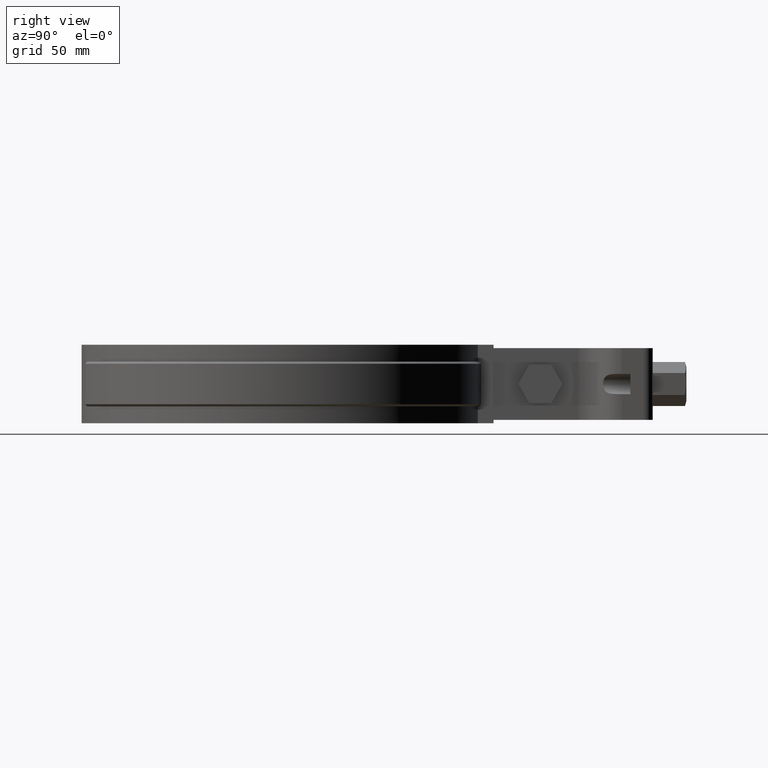
[diagram: clean part render]
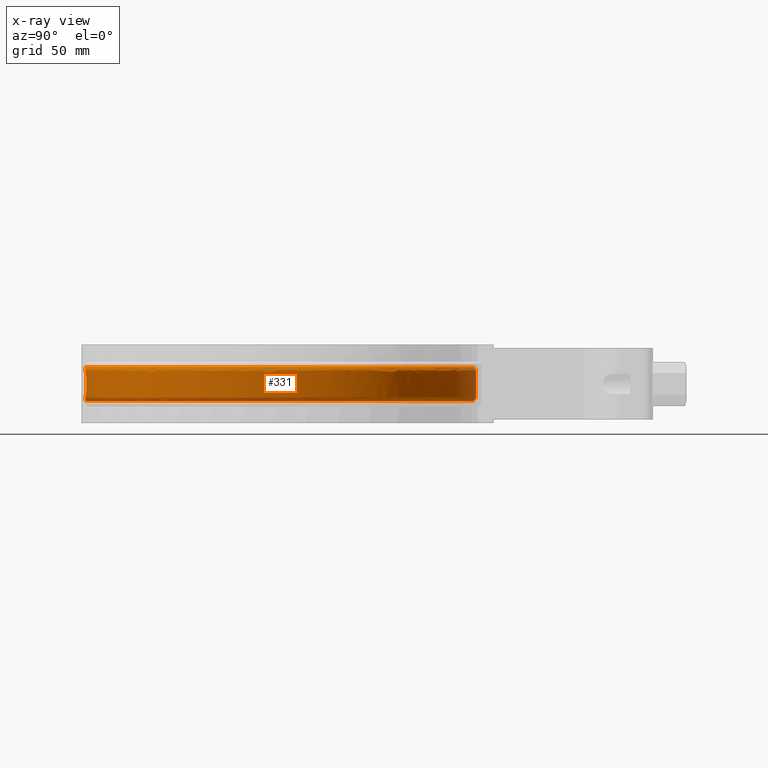
[diagram: x-ray — body ghosted, one internal face saturated and labeled with its STEP entity id]
A machine part, right view, then the same camera in x-ray: the body is ghosted and one INTERNAL B-rep face — a face not visible from any outside direction — is saturated and labeled: STEP entity #331.
In plain terms, the highlighted face is a freeform B-spline surface patch.
Its self-contained STEP definition (entity closure, byte-faithful):
#331 = ADVANCED_FACE( '', ( #527, #528 ), #529, .F. );
#527 = FACE_BOUND( '', #916, .T. );
#528 = FACE_OUTER_BOUND( '', #917, .T. );
#529 = B_SPLINE_SURFACE_WITH_KNOTS( '', 3, 3, ( ( #918, #919, #920, #921, #922, #923, #924, #925, #926, #927, #928, #929, #930, #931, #932, #933, #934 ), ( #935, #936, #937, #938, #939, #940, #941, #942, #943, #944, #945, #946, #947, #948, #949, #950, #951 ), ( #952, #953, #954, #955, #956, #957, #958, #959, #960, #961, #962, #963, #964, #965, #966, #967, #968 ), ( #969, #970, #971, #972, #973, #974, #975, #976, #977, #978, #979, #980, #981, #982, #983, #984, #985 ), ( #986, #987, #988, #989, #990, #991, #992, #993, #994, #995, #996, #997, #998, #999, #1000, #1001, #1002 ), ( #1003, #1004, #1005, #1006, #1007, #1008, #1009, #1010, #1011, #1012, #1013, #1014, #1015, #1016, #1017, #1018, #1019 ), ( #1020, #1021, #1022, #1023, #1024, #1025, #1026, #1027, #1028, #1029, #1030, #1031, #1032, #1033, #1034, #1035, #1036 ), ( #1037, #1038, #1039, #1040, #1041, #1042, #1043, #1044, #1045, #1046, #1047, #1048, #1049, #1050, #1051, #1052, #1053 ), ( #1054, #1055, #1056, #1057, #1058, #1059, #1060, #1061, #1062, #1063, #1064, #1065, #1066, #1067, #1068, #1069, #1070 ), ( #1071, #1072, #1073, #1074, #1075, #1076, #1077, #1078, #1079, #1080, #1081, #1082, #1083, #1084, #1085, #1086, #1087 ), ( #1088, #1089, #1090, #1091, #1092, #1093, #1094, #1095, #1096, #1097, #1098, #1099, #1100, #1101, #1102, #1103, #1104 ), ( #1105, #1106, #1107, #1108, #1109, #1110, #1111, #1112, #1113, #1114, #1115, #1116, #1117, #1118, #1119, #1120, #1121 ), ( #1122, #1123, #1124, #1125, #1126, #1127, #1128, #1129, #1130, #1131, #1132, #1133, #1134, #1135, #1136, #1137, #1138 ), ( #1139, #1140, #1141, #1142, #1143, #1144, #1145, #1146, #1147, #1148, #1149, #1150, #1151, #1152, #1153, #1154, #1155 ), ( #1156, #1157, #1158, #1159, #1160, #1161, #1162, #1163, #1164, #1165, #1166, #1167, #1168, #1169, #1170, #1171, #1172 ), ( #1173, #1174, #1175, #1176, #1177, #1178, #1179, #1180, #1181, #1182, #1183, #1184, #1185, #1186, #1187, #1188, #1189 ), ( #1190, #1191, #1192, #1193, #1194, #1195, #1196, #1197, #1198, #1199, #1200, #1201, #1202, #1203, #1204, #1205, #1206 ), ( #1207, #1208, #1209, #1210, #1211, #1212, #1213, #1214, #1215, #1216, #1217, #1218, #1219, #1220, #1221, #1222, #1223 ), ( #1224, #1225, #1226, #1227, #1228, #1229, #1230, #1231, #1232, #1233, #1234, #1235, #1236, #1237, #1238, #1239, #1240 ), ( #1241, #1242, #1243, #1244, #1245, #1246, #1247, #1248, #1249, #1250, #1251, #1252, #1253, #1254, #1255, #1256, #1257 ), ( #1258, #1259, #1260, #1261, #1262, #1263, #1264, #1265, #1266, #1267, #1268, #1269, #1270, #1271, #1272, #1273, #1274 ), ( #1275, #1276, #1277, #1278, #1279, #1280, #1281, #1282, #1283, #1284, #1285, #1286, #1287, #1288, #1289, #1290, #1291 ) ), .UNSPECIFIED., .F., .F., .F., ( 4, 3, 1, 1, 1, 3, 3, 1, 1, 1, 3, 4 ), ( 4, 1, 1, 1, 1, 1, 1, 1, 1, 1, 1, 1, 1, 1, 4 ), ( 0.000000000000000, 0.0909090909090909, 0.181818181818182, 0.272727272727273, 0.363636363636364, 0.454545454545455, 0.545454545454545, 0.636363636363636, 0.727272727272727, 0.818181818181818, 0.909090909090909, 1.00000000000000 ), ( 2.94817470159169, 4.00000000000000, 5.00000000000000, 6.00000000000000, 7.00000000000000, 8.00000000000000, 9.00000000000000, 10.0000000000000, 11.0000000000000, 12.0000000000000, 13.0000000000000, 14.0000000000000, 15.0000000000000, 16.0000000000000, 17.0000000000000 ), .UNSPECIFIED. );
#916 = EDGE_LOOP( '', ( #2894, #2895, #2896, #2897, #2898, #2899 ) );
#917 = EDGE_LOOP( '', ( #2900, #2901, #2902, #2903 ) );
#918 = CARTESIAN_POINT( '', ( -4.57373842755548, 84.4836495014351, -25.5000000000000 ) );
#919 = CARTESIAN_POINT( '', ( -17.6140169030165, 83.7785484212474, -25.5000000000000 ) );
#920 = CARTESIAN_POINT( '', ( -42.7501224215282, 76.3907897944503, -25.5000000000000 ) );
#921 = CARTESIAN_POINT( '', ( -71.4956709775378, 50.2505123432270, -25.5000000000000 ) );
#922 = CARTESIAN_POINT( '', ( -86.1002312614292, 14.9572072467204, -25.5000000000000 ) );
#923 = CARTESIAN_POINT( '', ( -84.2552280888624, -23.1941572600242, -25.5000000000000 ) );
#924 = CARTESIAN_POINT( '', ( -66.3149285777702, -56.9144403506470, -25.5000000000000 ) );
#925 = CARTESIAN_POINT( '', ( -35.7060700331207, -79.7621372297763, -25.5000000000000 ) );
#926 = CARTESIAN_POINT( '', ( 1.72386383356951, -87.3724799998223, -25.5000000000000 ) );
#927 = CARTESIAN_POINT( '', ( 38.8244802352373, -78.2916402695729, -25.5000000000000 ) );
#928 = CARTESIAN_POINT( '', ( 68.5082946679775, -54.2543907568589, -25.5000000000000 ) );
#929 = CARTESIAN_POINT( '', ( 85.1045474199365, -19.8526038891576, -25.5000000000000 ) );
#930 = CARTESIAN_POINT( '', ( 85.4432300146408, 18.3414873582820, -25.5000000000000 ) );
#931 = CARTESIAN_POINT( '', ( 69.4579498746001, 53.0325875294891, -25.5000000000000 ) );
#932 = CARTESIAN_POINT( '', ( 40.2087681660690, 77.5893697278056, -25.5000000000000 ) );
#933 = CARTESIAN_POINT( '', ( 15.5760698412748, 84.0871317769174, -25.5000000000000 ) );
#934 = CARTESIAN_POINT( '', ( 3.16749899997406, 84.5477663442119, -25.5000000000000 ) );
#935 = CARTESIAN_POINT( '', ( -4.55503173385747, 85.2881737615936, -24.6952621458756 ) );
#936 = CARTESIAN_POINT( '', ( -17.7220381476268, 84.5859650730103, -24.6952621458756 ) );
#937 = CARTESIAN_POINT( '', ( -43.0987477430875, 77.1464507352005, -24.6952621458756 ) );
#938 = CARTESIAN_POINT( '', ( -72.1372249274321, 50.7793048320895, -24.6952621458757 ) );
#939 = CARTESIAN_POINT( '', ( -86.9057531623599, 15.1619661527957, -24.6952621458756 ) );
#940 = CARTESIAN_POINT( '', ( -85.0712176376558, -23.3525480085753, -24.6952621458756 ) );
#941 = CARTESIAN_POINT( '', ( -66.9854009723251, -57.4057226091606, -24.6952621458756 ) );
#942 = CARTESIAN_POINT( '', ( -36.1029690476388, -80.4924590207758, -24.6952621458757 ) );
#943 = CARTESIAN_POINT( '', ( 1.67636654314826, -88.2023244071327, -24.6952621458756 ) );
#944 = CARTESIAN_POINT( '', ( 39.1354582900263, -79.0624783820023, -24.6952621458756 ) );
#945 = CARTESIAN_POINT( '', ( 69.1183336662525, -54.8189648529472, -24.6952621458757 ) );
#946 = CARTESIAN_POINT( '', ( 85.8971358356805, -20.1030638184777, -24.6952621458757 ) );
#947 = CARTESIAN_POINT( '', ( 86.2668541452362, 18.4529998418757, -24.6952621458757 ) );
#948 = CARTESIAN_POINT( '', ( 70.1556487642159, 53.4847260329716, -24.6952621458756 ) );
#949 = CARTESIAN_POINT( '', ( 40.6458392590685, 78.2959229100007, -24.6952621458756 ) );
#950 = CARTESIAN_POINT( '', ( 15.7872527803084, 84.8729054578480, -24.6952621458757 ) );
#951 = CARTESIAN_POINT( '', ( 3.25931876250112, 85.3472487674522, -24.6952621458757 ) );
#952 = CARTESIAN_POINT( '', ( -4.53632504015947, 86.0926980217522, -23.8905242917513 ) );
#953 = CARTESIAN_POINT( '', ( -17.8300593922371, 85.3933817247733, -23.8905242917513 ) );
#954 = CARTESIAN_POINT( '', ( -43.4473730646468, 77.9021116759507, -23.8905242917513 ) );
#955 = CARTESIAN_POINT( '', ( -72.7787788773263, 51.3080973209521, -23.8905242917513 ) );
#956 = CARTESIAN_POINT( '', ( -87.7112750632906, 15.3667250588710, -23.8905242917513 ) );
#957 = CARTESIAN_POINT( '', ( -85.8872071864492, -23.5109387571263, -23.8905242917513 ) );
#958 = CARTESIAN_POINT( '', ( -67.6558733668801, -57.8970048676741, -23.8905242917513 ) );
#959 = CARTESIAN_POINT( '', ( -36.4998680621569, -81.2227808117754, -23.8905242917513 ) );
#960 = CARTESIAN_POINT( '', ( 1.62886925272701, -89.0321688144431, -23.8905242917513 ) );
#961 = CARTESIAN_POINT( '', ( 39.4464363448153, -79.8333164944318, -23.8905242917513 ) );
#962 = CARTESIAN_POINT( '', ( 69.7283726645276, -55.3835389490356, -23.8905242917513 ) );
#963 = CARTESIAN_POINT( '', ( 86.6897242514245, -20.3535237477978, -23.8905242917513 ) );
#964 = CARTESIAN_POINT( '', ( 87.0904782758316, 18.5645123254694, -23.8905242917513 ) );
#965 = CARTESIAN_POINT( '', ( 70.8533476538316, 53.9368645364541, -23.8905242917513 ) );
#966 = CARTESIAN_POINT( '', ( 41.0829103520679, 79.0024760921958, -23.8905242917513 ) );
#967 = CARTESIAN_POINT( '', ( 15.9984357193421, 85.6586791387786, -23.8905242917513 ) );
#968 = CARTESIAN_POINT( '', ( 3.35113852502818, 86.1467311906925, -23.8905242917513 ) );
#969 = CARTESIAN_POINT( '', ( -4.51761834646146, 86.8972222819108, -23.0857864376269 ) );
#970 = CARTESIAN_POINT( '', ( -17.9380806368474, 86.2007983765363, -23.0857864376269 ) );
#971 = CARTESIAN_POINT( '', ( -43.7959983862061, 78.6577726167009, -23.0857864376269 ) );
#972 = CARTESIAN_POINT( '', ( -73.4203328272206, 51.8368898098147, -23.0857864376269 ) );
#973 = CARTESIAN_POINT( '', ( -88.5167969642214, 15.5714839649463, -23.0857864376269 ) );
#974 = CARTESIAN_POINT( '', ( -86.7031967352426, -23.6693295056774, -23.0857864376269 ) );
#975 = CARTESIAN_POINT( '', ( -68.3263457614351, -58.3882871261876, -23.0857864376269 ) );
#976 = CARTESIAN_POINT( '', ( -36.8967670766750, -81.9531026027749, -23.0857864376269 ) );
#977 = CARTESIAN_POINT( '', ( 1.58137196230576, -89.8620132217535, -23.0857864376269 ) );
#978 = CARTESIAN_POINT( '', ( 39.7574143996044, -80.6041546068613, -23.0857864376269 ) );
#979 = CARTESIAN_POINT( '', ( 70.3384116628027, -55.9481130451239, -23.0857864376269 ) );
#980 = CARTESIAN_POINT( '', ( 87.4823126671685, -20.6039836771179, -23.0857864376269 ) );
#981 = CARTESIAN_POINT( '', ( 87.9141024064269, 18.6760248090632, -23.0857864376269 ) );
#982 = CARTESIAN_POINT( '', ( 71.5510465434473, 54.3890030399366, -23.0857864376269 ) );
#983 = CARTESIAN_POINT( '', ( 41.5199814450674, 79.7090292743909, -23.0857864376269 ) );
#984 = CARTESIAN_POINT( '', ( 16.2096186583757, 86.4444528197092, -23.0857864376269 ) );
#985 = CARTESIAN_POINT( '', ( 3.44295828755524, 86.9462136139328, -23.0857864376269 ) );
#986 = CARTESIAN_POINT( '', ( -4.51546674101459, 86.9897570081558, -22.9932271442431 ) );
#987 = CARTESIAN_POINT( '', ( -17.9505050183032, 86.2936657797167, -22.9932271442431 ) );
#988 = CARTESIAN_POINT( '', ( -43.8360965538937, 78.7446871844140, -22.9932271442431 ) );
#989 = CARTESIAN_POINT( '', ( -73.4941230434574, 51.8977104346491, -22.9932271442431 ) );
#990 = CARTESIAN_POINT( '', ( -88.6094464370568, 15.5950349133244, -22.9932271442431 ) );
#991 = CARTESIAN_POINT( '', ( -86.7970501754129, -23.6875472839132, -22.9932271442431 ) );
#992 = CARTESIAN_POINT( '', ( -68.4034621177184, -58.4447934014510, -22.9932271442431 ) );
#993 = CARTESIAN_POINT( '', ( -36.9424175852726, -82.0371027135828, -22.9932271442431 ) );
#994 = CARTESIAN_POINT( '', ( 1.57590892161928, -89.9574602192639, -22.9932271442431 ) );
#995 = CARTESIAN_POINT( '', ( 39.7931824560735, -80.6928148216556, -22.9932271442431 ) );
#996 = CARTESIAN_POINT( '', ( 70.4085770941012, -56.0130491968520, -22.9932271442431 ) );
#997 = CARTESIAN_POINT( '', ( 87.5734745571299, -20.6327910632251, -22.9932271442431 ) );
#998 = CARTESIAN_POINT( '', ( 88.0088339604989, 18.6888507456486, -22.9932271442431 ) );
#999 = CARTESIAN_POINT( '', ( 71.6312944352130, 54.4410070809787, -22.9932271442431 ) );
#1000 = CARTESIAN_POINT( '', ( 41.5702524635353, 79.7902955686840, -22.9932271442431 ) );
#1001 = CARTESIAN_POINT( '', ( 16.2339084858164, 86.5348308928840, -22.9932271442431 ) );
#1002 = CARTESIAN_POINT( '', ( 3.45351920785322, 87.0381684384618, -22.9932271442431 ) );
#1003 = CARTESIAN_POINT( '', ( -4.51158735940072, 87.1565987105515, -22.7898759680773 ) );
#1004 = CARTESIAN_POINT( '', ( -17.9729063916840, 86.4611073043467, -22.7898759680773 ) );
#1005 = CARTESIAN_POINT( '', ( -43.9083942396537, 78.9013956443477, -22.7898759680773 ) );
#1006 = CARTESIAN_POINT( '', ( -73.6271680720287, 52.0073710669320, -22.7898759680773 ) );
#1007 = CARTESIAN_POINT( '', ( -88.7764950295279, 15.6374976781682, -22.7898759680773 ) );
#1008 = CARTESIAN_POINT( '', ( -86.9662695416891, -23.7203942512959, -22.7898759680773 ) );
#1009 = CARTESIAN_POINT( '', ( -68.5425042339808, -58.5466751872794, -22.7898759680773 ) );
#1010 = CARTESIAN_POINT( '', ( -37.0247262371563, -82.1885563576072, -22.7898759680773 ) );
#1011 = CARTESIAN_POINT( '', ( 1.56605896533393, -90.1295527968227, -22.7898759680773 ) );
#1012 = CARTESIAN_POINT( '', ( 39.8576728768576, -80.8526707132901, -22.7898759680773 ) );
#1013 = CARTESIAN_POINT( '', ( 70.5350865731068, -56.1301301948835, -22.7898759680773 ) );
#1014 = CARTESIAN_POINT( '', ( 87.7378410121027, -20.6847312756700, -22.7898759680773 ) );
#1015 = CARTESIAN_POINT( '', ( 88.1796365812373, 18.7119761298322, -22.7898759680773 ) );
#1016 = CARTESIAN_POINT( '', ( 71.7759827637913, 54.5347712610977, -22.7898759680773 ) );
#1017 = CARTESIAN_POINT( '', ( 41.6608919741570, 79.9368200945290, -22.7898759680773 ) );
#1018 = CARTESIAN_POINT( '', ( 16.2777034623139, 86.6977841127140, -22.7898759680773 ) );
#1019 = CARTESIAN_POINT( '', ( 3.47256072872739, 87.2039645680933, -22.7898759680773 ) );
#1020 = CARTESIAN_POINT( '', ( -4.50726339850927, 87.3425605642765, -22.4418734431229 ) );
#1021 = CARTESIAN_POINT( '', ( -17.9978749748383, 86.6477377202657, -22.4418734431229 ) );
#1022 = CARTESIAN_POINT( '', ( -43.9889772801699, 79.0760629804225, -22.4418734431229 ) );
#1023 = CARTESIAN_POINT( '', ( -73.7754601344252, 52.1295988682979, -22.4418734431229 ) );
#1024 = CARTESIAN_POINT( '', ( -88.9626874830452, 15.6848266993378, -22.4418734431229 ) );
#1025 = CARTESIAN_POINT( '', ( -87.1548815408897, -23.7570054992993, -22.4418734431229 ) );
#1026 = CARTESIAN_POINT( '', ( -68.6974806536332, -58.6602326820868, -22.4418734431229 ) );
#1027 = CARTESIAN_POINT( '', ( -37.1164675060484, -82.3573666729645, -22.4418734431230 ) );
#1028 = CARTESIAN_POINT( '', ( 1.55508019861294, -90.3213672789073, -22.4418734431229 ) );
#1029 = CARTESIAN_POINT( '', ( 39.9295539355158, -81.0308461784787, -22.4418734431229 ) );
#1030 = CARTESIAN_POINT( '', ( 70.6760941083443, -56.2606287400150, -22.4418734431229 ) );
#1031 = CARTESIAN_POINT( '', ( 87.9210439536817, -20.7426238651750, -22.4418734431229 ) );
#1032 = CARTESIAN_POINT( '', ( 88.3700132767368, 18.7377516958275, -22.4418734431229 ) );
#1033 = CARTESIAN_POINT( '', ( 71.9372524548125, 54.6392808680939, -22.4418734431229 ) );
#1034 = CARTESIAN_POINT( '', ( 41.7619188228039, 80.1001364120387, -22.4418734431229 ) );
#1035 = CARTESIAN_POINT( '', ( 16.3265173673291, 86.8794118616217, -22.4418734431230 ) );
#1036 = CARTESIAN_POINT( '', ( 3.49378441842042, 87.3887610258371, -22.4418734431230 ) );
#1037 = CARTESIAN_POINT( '', ( -4.50460071653933, 87.4570753083829, -22.0642686993349 ) );
#1038 = CARTESIAN_POINT( '', ( -18.0132505524277, 86.7626641629383, -22.0642686993349 ) );
#1039 = CARTESIAN_POINT( '', ( -44.0386000715068, 79.1836225949009, -22.0642686993349 ) );
#1040 = CARTESIAN_POINT( '', ( -73.8667779355666, 52.2048663767452, -22.0642686993349 ) );
#1041 = CARTESIAN_POINT( '', ( -89.0773442298025, 15.7139717666700, -22.0642686993349 ) );
#1042 = CARTESIAN_POINT( '', ( -87.2710282365221, -23.7795505945032, -22.0642686993349 ) );
#1043 = CARTESIAN_POINT( '', ( -68.7929146616490, -58.7301610421174, -22.0642686993349 ) );
#1044 = CARTESIAN_POINT( '', ( -37.1729615004926, -82.4613195518934, -22.0642686993349 ) );
#1045 = CARTESIAN_POINT( '', ( 1.54831950744713, -90.4394860537625, -22.0642686993349 ) );
#1046 = CARTESIAN_POINT( '', ( 39.9738180728830, -81.1405660881989, -22.0642686993349 ) );
#1047 = CARTESIAN_POINT( '', ( 70.7629261198098, -56.3409893473259, -22.0642686993349 ) );
#1048 = CARTESIAN_POINT( '', ( 88.0338597680771, -20.7782739457697, -22.0642686993349 ) );
#1049 = CARTESIAN_POINT( '', ( 88.4872466669846, 18.7536242109968, -22.0642686993349 ) );
#1050 = CARTESIAN_POINT( '', ( 72.0365618402025, 54.7036375663204, -22.0642686993349 ) );
#1051 = CARTESIAN_POINT( '', ( 41.8241308490282, 80.2007061037975, -22.0642686993349 ) );
#1052 = CARTESIAN_POINT( '', ( 16.3565768216186, 86.9912576771594, -22.0642686993349 ) );
#1053 = CARTESIAN_POINT( '', ( 3.50685390200271, 87.5025581226417, -22.0642686993349 ) );
#1054 = CARTESIAN_POINT( '', ( -4.50400133142361, 87.4828532397778, -21.8024714832808 ) );
#1055 = CARTESIAN_POINT( '', ( -18.0167116838946, 86.7885347700622, -21.8024714832808 ) );
#1056 = CARTESIAN_POINT( '', ( -44.0497704489171, 79.2078348863794, -21.8024714832808 ) );
#1057 = CARTESIAN_POINT( '', ( -73.8873341008999, 52.2218095283381, -21.8024714832809 ) );
#1058 = CARTESIAN_POINT( '', ( -89.1031541268157, 15.7205324899380, -21.8024714832808 ) );
#1059 = CARTESIAN_POINT( '', ( -87.2971735296468, -23.7846256258627, -21.8024714832808 ) );
#1060 = CARTESIAN_POINT( '', ( -68.8143974089630, -58.7459023205134, -21.8024714832808 ) );
#1061 = CARTESIAN_POINT( '', ( -37.1856786254739, -82.4847199463338, -21.8024714832809 ) );
#1062 = CARTESIAN_POINT( '', ( 1.54679763675342, -90.4660752733292, -21.8024714832808 ) );
#1063 = CARTESIAN_POINT( '', ( 39.9837821862834, -81.1652646746341, -21.8024714832808 ) );
#1064 = CARTESIAN_POINT( '', ( 70.7824725079357, -56.3590789849378, -21.8024714832809 ) );
#1065 = CARTESIAN_POINT( '', ( 88.0592552605653, -20.7862989851562, -21.8024714832809 ) );
#1066 = CARTESIAN_POINT( '', ( 88.5136365813540, 18.7571972059878, -21.8024714832809 ) );
#1067 = CARTESIAN_POINT( '', ( 72.0589169573835, 54.7181246314109, -21.8024714832809 ) );
#1068 = CARTESIAN_POINT( '', ( 41.8381351360435, 80.2233449232334, -21.8024714832808 ) );
#1069 = CARTESIAN_POINT( '', ( 16.3633433786807, 87.0164348172930, -21.8024714832809 ) );
#1070 = CARTESIAN_POINT( '', ( 3.50979591836732, 87.5281745074772, -21.8024714832809 ) );
#1071 = CARTESIAN_POINT( '', ( -4.50400133142361, 87.4828532397778, -21.6715728752538 ) );
#1072 = CARTESIAN_POINT( '', ( -18.0167116838946, 86.7885347700622, -21.6715728752538 ) );
#1073 = CARTESIAN_POINT( '', ( -44.0497704489171, 79.2078348863794, -21.6715728752538 ) );
#1074 = CARTESIAN_POINT( '', ( -73.8873341008999, 52.2218095283381, -21.6715728752538 ) );
#1075 = CARTESIAN_POINT( '', ( -89.1031541268157, 15.7205324899380, -21.6715728752538 ) );
#1076 = CARTESIAN_POINT( '', ( -87.2971735296468, -23.7846256258627, -21.6715728752538 ) );
#1077 = CARTESIAN_POINT( '', ( -68.8143974089630, -58.7459023205134, -21.6715728752538 ) );
#1078 = CARTESIAN_POINT( '', ( -37.1856786254739, -82.4847199463338, -21.6715728752538 ) );
#1079 = CARTESIAN_POINT( '', ( 1.54679763675342, -90.4660752733292, -21.6715728752538 ) );
#1080 = CARTESIAN_POINT( '', ( 39.9837821862834, -81.1652646746341, -21.6715728752538 ) );
#1081 = CARTESIAN_POINT( '', ( 70.7824725079357, -56.3590789849378, -21.6715728752538 ) );
#1082 = CARTESIAN_POINT( '', ( 88.0592552605653, -20.7862989851562, -21.6715728752538 ) );
#1083 = CARTESIAN_POINT( '', ( 88.5136365813540, 18.7571972059878, -21.6715728752538 ) );
#1084 = CARTESIAN_POINT( '', ( 72.0589169573835, 54.7181246314109, -21.6715728752538 ) );
#1085 = CARTESIAN_POINT( '', ( 41.8381351360435, 80.2233449232334, -21.6715728752538 ) );
#1086 = CARTESIAN_POINT( '', ( 16.3633433786807, 87.0164348172930, -21.6715728752538 ) );
#1087 = CARTESIAN_POINT( '', ( 3.50979591836732, 87.5281745074772, -21.6715728752538 ) );
#1088 = CARTESIAN_POINT( '', ( -4.50400133142361, 87.4828532397778, -17.8905242917513 ) );
#1089 = CARTESIAN_POINT( '', ( -18.0167116838946, 86.7885347700622, -17.8905242917513 ) );
#1090 = CARTESIAN_POINT( '', ( -44.0497704489171, 79.2078348863794, -17.8905242917513 ) );
#1091 = CARTESIAN_POINT( '', ( -73.8873341008999, 52.2218095283380, -17.8905242917513 ) );
#1092 = CARTESIAN_POINT( '', ( -89.1031541268157, 15.7205324899380, -17.8905242917513 ) );
#1093 = CARTESIAN_POINT( '', ( -87.2971735296468, -23.7846256258627, -17.8905242917513 ) );
#1094 = CARTESIAN_POINT( '', ( -68.8143974089630, -58.7459023205134, -17.8905242917513 ) );
#1095 = CARTESIAN_POINT( '', ( -37.1856786254739, -82.4847199463338, -17.8905242917513 ) );
#1096 = CARTESIAN_POINT( '', ( 1.54679763675341, -90.4660752733292, -17.8905242917513 ) );
#1097 = CARTESIAN_POINT( '', ( 39.9837821862834, -81.1652646746341, -17.8905242917513 ) );
#1098 = CARTESIAN_POINT( '', ( 70.7824725079357, -56.3590789849378, -17.8905242917513 ) );
#1099 = CARTESIAN_POINT( '', ( 88.0592552605653, -20.7862989851562, -17.8905242917513 ) );
#1100 = CARTESIAN_POINT( '', ( 88.5136365813540, 18.7571972059878, -17.8905242917513 ) );
#1101 = CARTESIAN_POINT( '', ( 72.0589169573834, 54.7181246314109, -17.8905242917513 ) );
#1102 = CARTESIAN_POINT( '', ( 41.8381351360435, 80.2233449232333, -17.8905242917513 ) );
#1103 = CARTESIAN_POINT( '', ( 16.3633433786807, 87.0164348172930, -17.8905242917513 ) );
#1104 = CARTESIAN_POINT( '', ( 3.50979591836732, 87.5281745074772, -17.8905242917513 ) );
#1105 = CARTESIAN_POINT( '', ( -4.50400133142361, 87.4828532397778, -14.1094757082487 ) );
#1106 = CARTESIAN_POINT( '', ( -18.0167116838946, 86.7885347700622, -14.1094757082487 ) );
#1107 = CARTESIAN_POINT( '', ( -44.0497704489171, 79.2078348863794, -14.1094757082487 ) );
#1108 = CARTESIAN_POINT( '', ( -73.8873341008999, 52.2218095283380, -14.1094757082487 ) );
#1109 = CARTESIAN_POINT( '', ( -89.1031541268157, 15.7205324899380, -14.1094757082487 ) );
#1110 = CARTESIAN_POINT( '', ( -87.2971735296468, -23.7846256258627, -14.1094757082487 ) );
#1111 = CARTESIAN_POINT( '', ( -68.8143974089630, -58.7459023205134, -14.1094757082487 ) );
#1112 = CARTESIAN_POINT( '', ( -37.1856786254739, -82.4847199463338, -14.1094757082488 ) );
#1113 = CARTESIAN_POINT( '', ( 1.54679763675341, -90.4660752733292, -14.1094757082487 ) );
#1114 = CARTESIAN_POINT( '', ( 39.9837821862834, -81.1652646746341, -14.1094757082487 ) );
#1115 = CARTESIAN_POINT( '', ( 70.7824725079357, -56.3590789849378, -14.1094757082487 ) );
#1116 = CARTESIAN_POINT( '', ( 88.0592552605653, -20.7862989851562, -14.1094757082487 ) );
#1117 = CARTESIAN_POINT( '', ( 88.5136365813540, 18.7571972059878, -14.1094757082487 ) );
#1118 = CARTESIAN_POINT( '', ( 72.0589169573834, 54.7181246314109, -14.1094757082487 ) );
#1119 = CARTESIAN_POINT( '', ( 41.8381351360435, 80.2233449232333, -14.1094757082487 ) );
#1120 = CARTESIAN_POINT( '', ( 16.3633433786807, 87.0164348172930, -14.1094757082487 ) );
#1121 = CARTESIAN_POINT( '', ( 3.50979591836732, 87.5281745074772, -14.1094757082487 ) );
#1122 = CARTESIAN_POINT( '', ( -4.50400133142361, 87.4828532397778, -10.3284271247462 ) );
#1123 = CARTESIAN_POINT( '', ( -18.0167116838946, 86.7885347700622, -10.3284271247462 ) );
#1124 = CARTESIAN_POINT( '', ( -44.0497704489171, 79.2078348863794, -10.3284271247462 ) );
#1125 = CARTESIAN_POINT( '', ( -73.8873341008999, 52.2218095283380, -10.3284271247462 ) );
#1126 = CARTESIAN_POINT( '', ( -89.1031541268157, 15.7205324899380, -10.3284271247462 ) );
#1127 = CARTESIAN_POINT( '', ( -87.2971735296468, -23.7846256258627, -10.3284271247462 ) );
#1128 = CARTESIAN_POINT( '', ( -68.8143974089630, -58.7459023205134, -10.3284271247462 ) );
#1129 = CARTESIAN_POINT( '', ( -37.1856786254739, -82.4847199463338, -10.3284271247462 ) );
#1130 = CARTESIAN_POINT( '', ( 1.54679763675341, -90.4660752733292, -10.3284271247462 ) );
#1131 = CARTESIAN_POINT( '', ( 39.9837821862834, -81.1652646746341, -10.3284271247462 ) );
#1132 = CARTESIAN_POINT( '', ( 70.7824725079357, -56.3590789849378, -10.3284271247462 ) );
#1133 = CARTESIAN_POINT( '', ( 88.0592552605653, -20.7862989851562, -10.3284271247462 ) );
#1134 = CARTESIAN_POINT( '', ( 88.5136365813540, 18.7571972059878, -10.3284271247462 ) );
#1135 = CARTESIAN_POINT( '', ( 72.0589169573834, 54.7181246314109, -10.3284271247462 ) );
#1136 = CARTESIAN_POINT( '', ( 41.8381351360435, 80.2233449232333, -10.3284271247462 ) );
#1137 = CARTESIAN_POINT( '', ( 16.3633433786807, 87.0164348172930, -10.3284271247462 ) );
#1138 = CARTESIAN_POINT( '', ( 3.50979591836732, 87.5281745074772, -10.3284271247462 ) );
#1139 = CARTESIAN_POINT( '', ( -4.50400133142361, 87.4828532397778, -10.1975285167192 ) );
#1140 = CARTESIAN_POINT( '', ( -18.0167116838946, 86.7885347700622, -10.1975285167192 ) );
#1141 = CARTESIAN_POINT( '', ( -44.0497704489171, 79.2078348863794, -10.1975285167192 ) );
#1142 = CARTESIAN_POINT( '', ( -73.8873341008999, 52.2218095283380, -10.1975285167192 ) );
#1143 = CARTESIAN_POINT( '', ( -89.1031541268157, 15.7205324899380, -10.1975285167192 ) );
#1144 = CARTESIAN_POINT( '', ( -87.2971735296468, -23.7846256258627, -10.1975285167192 ) );
#1145 = CARTESIAN_POINT( '', ( -68.8143974089630, -58.7459023205134, -10.1975285167192 ) );
#1146 = CARTESIAN_POINT( '', ( -37.1856786254739, -82.4847199463338, -10.1975285167192 ) );
#1147 = CARTESIAN_POINT( '', ( 1.54679763675341, -90.4660752733292, -10.1975285167192 ) );
#1148 = CARTESIAN_POINT( '', ( 39.9837821862834, -81.1652646746341, -10.1975285167192 ) );
#1149 = CARTESIAN_POINT( '', ( 70.7824725079357, -56.3590789849378, -10.1975285167192 ) );
#1150 = CARTESIAN_POINT( '', ( 88.0592552605653, -20.7862989851562, -10.1975285167192 ) );
#1151 = CARTESIAN_POINT( '', ( 88.5136365813540, 18.7571972059878, -10.1975285167192 ) );
#1152 = CARTESIAN_POINT( '', ( 72.0589169573834, 54.7181246314109, -10.1975285167192 ) );
#1153 = CARTESIAN_POINT( '', ( 41.8381351360435, 80.2233449232333, -10.1975285167192 ) );
#1154 = CARTESIAN_POINT( '', ( 16.3633433786807, 87.0164348172930, -10.1975285167192 ) );
#1155 = CARTESIAN_POINT( '', ( 3.50979591836732, 87.5281745074772, -10.1975285167192 ) );
#1156 = CARTESIAN_POINT( '', ( -4.50460071653933, 87.4570753083829, -9.93573130066509 ) );
#1157 = CARTESIAN_POINT( '', ( -18.0132505524277, 86.7626641629383, -9.93573130066509 ) );
#1158 = CARTESIAN_POINT( '', ( -44.0386000715068, 79.1836225949009, -9.93573130066509 ) );
#1159 = CARTESIAN_POINT( '', ( -73.8667779355666, 52.2048663767452, -9.93573130066510 ) );
#1160 = CARTESIAN_POINT( '', ( -89.0773442298026, 15.7139717666700, -9.93573130066509 ) );
#1161 = CARTESIAN_POINT( '', ( -87.2710282365221, -23.7795505945032, -9.93573130066509 ) );
#1162 = CARTESIAN_POINT( '', ( -68.7929146616490, -58.7301610421174, -9.93573130066509 ) );
#1163 = CARTESIAN_POINT( '', ( -37.1729615004926, -82.4613195518935, -9.93573130066510 ) );
#1164 = CARTESIAN_POINT( '', ( 1.54831950744713, -90.4394860537625, -9.93573130066509 ) );
#1165 = CARTESIAN_POINT( '', ( 39.9738180728829, -81.1405660881989, -9.93573130066509 ) );
#1166 = CARTESIAN_POINT( '', ( 70.7629261198098, -56.3409893473259, -9.93573130066510 ) );
#1167 = CARTESIAN_POINT( '', ( 88.0338597680771, -20.7782739457697, -9.93573130066510 ) );
#1168 = CARTESIAN_POINT( '', ( 88.4872466669846, 18.7536242109968, -9.93573130066510 ) );
#1169 = CARTESIAN_POINT( '', ( 72.0365618402025, 54.7036375663204, -9.93573130066509 ) );
#1170 = CARTESIAN_POINT( '', ( 41.8241308490282, 80.2007061037975, -9.93573130066509 ) );
#1171 = CARTESIAN_POINT( '', ( 16.3565768216186, 86.9912576771594, -9.93573130066510 ) );
#1172 = CARTESIAN_POINT( '', ( 3.50685390200271, 87.5025581226417, -9.93573130066510 ) );
#1173 = CARTESIAN_POINT( '', ( -4.50726339850927, 87.3425605642765, -9.55812655687707 ) );
#1174 = CARTESIAN_POINT( '', ( -17.9978749748383, 86.6477377202657, -9.55812655687707 ) );
#1175 = CARTESIAN_POINT( '', ( -43.9889772801699, 79.0760629804225, -9.55812655687707 ) );
#1176 = CARTESIAN_POINT( '', ( -73.7754601344252, 52.1295988682979, -9.55812655687707 ) );
#1177 = CARTESIAN_POINT( '', ( -88.9626874830452, 15.6848266993378, -9.55812655687707 ) );
#1178 = CARTESIAN_POINT( '', ( -87.1548815408897, -23.7570054992993, -9.55812655687707 ) );
#1179 = CARTESIAN_POINT( '', ( -68.6974806536332, -58.6602326820868, -9.55812655687707 ) );
#1180 = CARTESIAN_POINT( '', ( -37.1164675060484, -82.3573666729645, -9.55812655687708 ) );
#1181 = CARTESIAN_POINT( '', ( 1.55508019861295, -90.3213672789073, -9.55812655687707 ) );
#1182 = CARTESIAN_POINT( '', ( 39.9295539355158, -81.0308461784787, -9.55812655687707 ) );
#1183 = CARTESIAN_POINT( '', ( 70.6760941083443, -56.2606287400150, -9.55812655687708 ) );
#1184 = CARTESIAN_POINT( '', ( 87.9210439536817, -20.7426238651750, -9.55812655687707 ) );
#1185 = CARTESIAN_POINT( '', ( 88.3700132767368, 18.7377516958275, -9.55812655687708 ) );
#1186 = CARTESIAN_POINT( '', ( 71.9372524548125, 54.6392808680939, -9.55812655687707 ) );
#1187 = CARTESIAN_POINT( '', ( 41.7619188228039, 80.1001364120387, -9.55812655687707 ) );
#1188 = CARTESIAN_POINT( '', ( 16.3265173673291, 86.8794118616217, -9.55812655687708 ) );
#1189 = CARTESIAN_POINT( '', ( 3.49378441842042, 87.3887610258371, -9.55812655687708 ) );
#1190 = CARTESIAN_POINT( '', ( -4.51158735940072, 87.1565987105515, -9.21012403192273 ) );
#1191 = CARTESIAN_POINT( '', ( -17.9729063916840, 86.4611073043467, -9.21012403192273 ) );
#1192 = CARTESIAN_POINT( '', ( -43.9083942396537, 78.9013956443477, -9.21012403192273 ) );
#1193 = CARTESIAN_POINT( '', ( -73.6271680720287, 52.0073710669320, -9.21012403192273 ) );
#1194 = CARTESIAN_POINT( '', ( -88.7764950295278, 15.6374976781682, -9.21012403192272 ) );
#1195 = CARTESIAN_POINT( '', ( -86.9662695416891, -23.7203942512959, -9.21012403192272 ) );
#1196 = CARTESIAN_POINT( '', ( -68.5425042339808, -58.5466751872794, -9.21012403192272 ) );
#1197 = CARTESIAN_POINT( '', ( -37.0247262371563, -82.1885563576071, -9.21012403192273 ) );
#1198 = CARTESIAN_POINT( '', ( 1.56605896533393, -90.1295527968227, -9.21012403192272 ) );
#1199 = CARTESIAN_POINT( '', ( 39.8576728768576, -80.8526707132901, -9.21012403192273 ) );
#1200 = CARTESIAN_POINT( '', ( 70.5350865731068, -56.1301301948835, -9.21012403192273 ) );
#1201 = CARTESIAN_POINT( '', ( 87.7378410121027, -20.6847312756700, -9.21012403192273 ) );
#1202 = CARTESIAN_POINT( '', ( 88.1796365812373, 18.7119761298322, -9.21012403192273 ) );
#1203 = CARTESIAN_POINT( '', ( 71.7759827637913, 54.5347712610977, -9.21012403192273 ) );
#1204 = CARTESIAN_POINT( '', ( 41.6608919741569, 79.9368200945290, -9.21012403192272 ) );
#1205 = CARTESIAN_POINT( '', ( 16.2777034623139, 86.6977841127140, -9.21012403192273 ) );
#1206 = CARTESIAN_POINT( '', ( 3.47256072872739, 87.2039645680932, -9.21012403192273 ) );
#1207 = CARTESIAN_POINT( '', ( -4.51546674101459, 86.9897570081558, -9.00677285575690 ) );
#1208 = CARTESIAN_POINT( '', ( -17.9505050183032, 86.2936657797167, -9.00677285575690 ) );
#1209 = CARTESIAN_POINT( '', ( -43.8360965538937, 78.7446871844140, -9.00677285575690 ) );
#1210 = CARTESIAN_POINT( '', ( -73.4941230434574, 51.8977104346491, -9.00677285575690 ) );
#1211 = CARTESIAN_POINT( '', ( -88.6094464370567, 15.5950349133244, -9.00677285575690 ) );
#1212 = CARTESIAN_POINT( '', ( -86.7970501754129, -23.6875472839132, -9.00677285575690 ) );
#1213 = CARTESIAN_POINT( '', ( -68.4034621177184, -58.4447934014510, -9.00677285575690 ) );
#1214 = CARTESIAN_POINT( '', ( -36.9424175852726, -82.0371027135827, -9.00677285575691 ) );
#1215 = CARTESIAN_POINT( '', ( 1.57590892161928, -89.9574602192639, -9.00677285575690 ) );
#1216 = CARTESIAN_POINT( '', ( 39.7931824560734, -80.6928148216556, -9.00677285575690 ) );
#1217 = CARTESIAN_POINT( '', ( 70.4085770941012, -56.0130491968520, -9.00677285575691 ) );
#1218 = CARTESIAN_POINT( '', ( 87.5734745571299, -20.6327910632251, -9.00677285575691 ) );
#1219 = CARTESIAN_POINT( '', ( 88.0088339604989, 18.6888507456486, -9.00677285575691 ) );
#1220 = CARTESIAN_POINT( '', ( 71.6312944352130, 54.4410070809786, -9.00677285575690 ) );
#1221 = CARTESIAN_POINT( '', ( 41.5702524635353, 79.7902955686840, -9.00677285575690 ) );
#1222 = CARTESIAN_POINT( '', ( 16.2339084858164, 86.5348308928840, -9.00677285575691 ) );
#1223 = CARTESIAN_POINT( '', ( 3.45351920785322, 87.0381684384618, -9.00677285575691 ) );
#1224 = CARTESIAN_POINT( '', ( -4.51761834646146, 86.8972222819108, -8.91421356237310 ) );
#1225 = CARTESIAN_POINT( '', ( -17.9380806368474, 86.2007983765363, -8.91421356237310 ) );
#1226 = CARTESIAN_POINT( '', ( -43.7959983862061, 78.6577726167009, -8.91421356237310 ) );
#1227 = CARTESIAN_POINT( '', ( -73.4203328272206, 51.8368898098147, -8.91421356237311 ) );
#1228 = CARTESIAN_POINT( '', ( -88.5167969642214, 15.5714839649463, -8.91421356237310 ) );
#1229 = CARTESIAN_POINT( '', ( -86.7031967352426, -23.6693295056774, -8.91421356237310 ) );
#1230 = CARTESIAN_POINT( '', ( -68.3263457614351, -58.3882871261876, -8.91421356237310 ) );
#1231 = CARTESIAN_POINT( '', ( -36.8967670766750, -81.9531026027749, -8.91421356237311 ) );
#1232 = CARTESIAN_POINT( '', ( 1.58137196230576, -89.8620132217535, -8.91421356237310 ) );
#1233 = CARTESIAN_POINT( '', ( 39.7574143996044, -80.6041546068613, -8.91421356237310 ) );
#1234 = CARTESIAN_POINT( '', ( 70.3384116628027, -55.9481130451239, -8.91421356237311 ) );
#1235 = CARTESIAN_POINT( '', ( 87.4823126671685, -20.6039836771179, -8.91421356237311 ) );
#1236 = CARTESIAN_POINT( '', ( 87.9141024064269, 18.6760248090632, -8.91421356237311 ) );
#1237 = CARTESIAN_POINT( '', ( 71.5510465434473, 54.3890030399366, -8.91421356237310 ) );
#1238 = CARTESIAN_POINT( '', ( 41.5199814450674, 79.7090292743909, -8.91421356237310 ) );
#1239 = CARTESIAN_POINT( '', ( 16.2096186583757, 86.4444528197092, -8.91421356237311 ) );
#1240 = CARTESIAN_POINT( '', ( 3.44295828755524, 86.9462136139328, -8.91421356237311 ) );
#1241 = CARTESIAN_POINT( '', ( -4.53632504015947, 86.0926980217522, -8.10947570824872 ) );
#1242 = CARTESIAN_POINT( '', ( -17.8300593922371, 85.3933817247733, -8.10947570824872 ) );
#1243 = CARTESIAN_POINT( '', ( -43.4473730646468, 77.9021116759507, -8.10947570824872 ) );
#1244 = CARTESIAN_POINT( '', ( -72.7787788773263, 51.3080973209521, -8.10947570824872 ) );
#1245 = CARTESIAN_POINT( '', ( -87.7112750632906, 15.3667250588710, -8.10947570824872 ) );
#1246 = CARTESIAN_POINT( '', ( -85.8872071864492, -23.5109387571263, -8.10947570824872 ) );
#1247 = CARTESIAN_POINT( '', ( -67.6558733668801, -57.8970048676741, -8.10947570824871 ) );
#1248 = CARTESIAN_POINT( '', ( -36.4998680621569, -81.2227808117753, -8.10947570824872 ) );
#1249 = CARTESIAN_POINT( '', ( 1.62886925272701, -89.0321688144431, -8.10947570824872 ) );
#1250 = CARTESIAN_POINT( '', ( 39.4464363448153, -79.8333164944318, -8.10947570824872 ) );
#1251 = CARTESIAN_POINT( '', ( 69.7283726645276, -55.3835389490356, -8.10947570824872 ) );
#1252 = CARTESIAN_POINT( '', ( 86.6897242514245, -20.3535237477978, -8.10947570824872 ) );
#1253 = CARTESIAN_POINT( '', ( 87.0904782758316, 18.5645123254694, -8.10947570824872 ) );
#1254 = CARTESIAN_POINT( '', ( 70.8533476538315, 53.9368645364541, -8.10947570824872 ) );
#1255 = CARTESIAN_POINT( '', ( 41.0829103520679, 79.0024760921958, -8.10947570824872 ) );
#1256 = CARTESIAN_POINT( '', ( 15.9984357193421, 85.6586791387786, -8.10947570824872 ) );
#1257 = CARTESIAN_POINT( '', ( 3.35113852502818, 86.1467311906925, -8.10947570824872 ) );
#1258 = CARTESIAN_POINT( '', ( -4.55503173385747, 85.2881737615936, -7.30473785412435 ) );
#1259 = CARTESIAN_POINT( '', ( -17.7220381476268, 84.5859650730103, -7.30473785412435 ) );
#1260 = CARTESIAN_POINT( '', ( -43.0987477430875, 77.1464507352005, -7.30473785412435 ) );
#1261 = CARTESIAN_POINT( '', ( -72.1372249274321, 50.7793048320895, -7.30473785412435 ) );
#1262 = CARTESIAN_POINT( '', ( -86.9057531623599, 15.1619661527957, -7.30473785412435 ) );
#1263 = CARTESIAN_POINT( '', ( -85.0712176376558, -23.3525480085752, -7.30473785412435 ) );
#1264 = CARTESIAN_POINT( '', ( -66.9854009723251, -57.4057226091606, -7.30473785412435 ) );
#1265 = CARTESIAN_POINT( '', ( -36.1029690476388, -80.4924590207758, -7.30473785412435 ) );
#1266 = CARTESIAN_POINT( '', ( 1.67636654314827, -88.2023244071327, -7.30473785412435 ) );
#1267 = CARTESIAN_POINT( '', ( 39.1354582900263, -79.0624783820023, -7.30473785412435 ) );
#1268 = CARTESIAN_POINT( '', ( 69.1183336662526, -54.8189648529472, -7.30473785412435 ) );
#1269 = CARTESIAN_POINT( '', ( 85.8971358356805, -20.1030638184777, -7.30473785412435 ) );
#1270 = CARTESIAN_POINT( '', ( 86.2668541452362, 18.4529998418757, -7.30473785412435 ) );
#1271 = CARTESIAN_POINT( '', ( 70.1556487642158, 53.4847260329716, -7.30473785412435 ) );
#1272 = CARTESIAN_POINT( '', ( 40.6458392590685, 78.2959229100007, -7.30473785412435 ) );
#1273 = CARTESIAN_POINT( '', ( 15.7872527803084, 84.8729054578480, -7.30473785412435 ) );
#1274 = CARTESIAN_POINT( '', ( 3.25931876250112, 85.3472487674522, -7.30473785412435 ) );
#1275 = CARTESIAN_POINT( '', ( -4.57373842755548, 84.4836495014351, -6.49999999999998 ) );
#1276 = CARTESIAN_POINT( '', ( -17.6140169030165, 83.7785484212474, -6.49999999999998 ) );
#1277 = CARTESIAN_POINT( '', ( -42.7501224215282, 76.3907897944503, -6.49999999999998 ) );
#1278 = CARTESIAN_POINT( '', ( -71.4956709775378, 50.2505123432270, -6.49999999999998 ) );
#1279 = CARTESIAN_POINT( '', ( -86.1002312614292, 14.9572072467204, -6.49999999999998 ) );
#1280 = CARTESIAN_POINT( '', ( -84.2552280888624, -23.1941572600242, -6.49999999999998 ) );
#1281 = CARTESIAN_POINT( '', ( -66.3149285777702, -56.9144403506470, -6.49999999999998 ) );
#1282 = CARTESIAN_POINT( '', ( -35.7060700331207, -79.7621372297763, -6.49999999999998 ) );
#1283 = CARTESIAN_POINT( '', ( 1.72386383356951, -87.3724799998223, -6.49999999999998 ) );
#1284 = CARTESIAN_POINT( '', ( 38.8244802352373, -78.2916402695728, -6.49999999999998 ) );
#1285 = CARTESIAN_POINT( '', ( 68.5082946679775, -54.2543907568589, -6.49999999999998 ) );
#1286 = CARTESIAN_POINT( '', ( 85.1045474199366, -19.8526038891576, -6.49999999999998 ) );
#1287 = CARTESIAN_POINT( '', ( 85.4432300146408, 18.3414873582820, -6.49999999999998 ) );
#1288 = CARTESIAN_POINT( '', ( 69.4579498746001, 53.0325875294891, -6.49999999999998 ) );
#1289 = CARTESIAN_POINT( '', ( 40.2087681660690, 77.5893697278056, -6.49999999999998 ) );
#1290 = CARTESIAN_POINT( '', ( 15.5760698412748, 84.0871317769174, -6.49999999999998 ) );
#1291 = CARTESIAN_POINT( '', ( 3.16749899997406, 84.5477663442119, -6.49999999999998 ) );
#2894 = ORIENTED_EDGE( '', *, *, #5021, .T. );
#2895 = ORIENTED_EDGE( '', *, *, #4996, .T. );
#2896 = ORIENTED_EDGE( '', *, *, #4983, .T. );
#2897 = ORIENTED_EDGE( '', *, *, #4986, .T. );
#2898 = ORIENTED_EDGE( '', *, *, #5006, .T. );
#2899 = ORIENTED_EDGE( '', *, *, #5020, .T. );
#2900 = ORIENTED_EDGE( '', *, *, #5012, .T. );
#2901 = ORIENTED_EDGE( '', *, *, #5022, .T. );
#2902 = ORIENTED_EDGE( '', *, *, #4997, .T. );
#2903 = ORIENTED_EDGE( '', *, *, #5001, .T. );
#4983 = EDGE_CURVE( '', #5465, #5471, #5473, .T. );
#4986 = EDGE_CURVE( '', #5471, #5476, #5478, .T. );
#4996 = EDGE_CURVE( '', #5490, #5465, #5493, .T. );
#4997 = EDGE_CURVE( '', #5494, #5495, #5496, .T. );
#5001 = EDGE_CURVE( '', #5495, #5502, #5503, .T. );
#5006 = EDGE_CURVE( '', #5476, #5508, #5510, .T. );
#5012 = EDGE_CURVE( '', #5502, #5519, #5520, .T. );
#5020 = EDGE_CURVE( '', #5508, #5531, #5533, .T. );
#5021 = EDGE_CURVE( '', #5531, #5490, #5534, .T. );
#5022 = EDGE_CURVE( '', #5519, #5494, #5535, .T. );
#5465 = VERTEX_POINT( '', #6502 );
#5471 = VERTEX_POINT( '', #6542 );
#5473 = B_SPLINE_CURVE_WITH_KNOTS( '', 3, ( #6545, #6546, #6547, #6548, #6549, #6550, #6551, #6552, #6553, #6554, #6555, #6556, #6557, #6558, #6559, #6560, #6561, #6562, #6563, #6564, #6565 ), .UNSPECIFIED., .F., .F., ( 4, 2, 2, 2, 2, 1, 2, 2, 2, 2, 4 ), ( 3.46944695195361E-018, 0.00137781481547626, 0.00275562963095252, 0.00413344444642877, 0.00482235185416690, 0.00551125926190503, 0.00620016666964316, 0.00688907407738128, 0.00826688889285754, 0.00964470370833380, 0.0110225185238101 ), .UNSPECIFIED. );
#5476 = VERTEX_POINT( '', #6568 );
#5478 = B_SPLINE_CURVE_WITH_KNOTS( '', 3, ( #6571, #6572, #6573, #6574, #6575 ), .UNSPECIFIED., .F., .F., ( 4, 1, 4 ), ( 0.000000000000000, 0.00954739829974322, 0.0160389694962241 ), .UNSPECIFIED. );
#5490 = VERTEX_POINT( '', #6814 );
#5493 = B_SPLINE_CURVE_WITH_KNOTS( '', 3, ( #6821, #6822, #6823, #6824, #6825, #6826, #6827, #6828, #6829, #6830, #6831, #6832, #6833, #6834, #6835, #6836, #6837, #6838, #6839, #6840, #6841, #6842, #6843, #6844 ), .UNSPECIFIED., .F., .F., ( 4, 2, 2, 2, 2, 2, 2, 2, 2, 2, 2, 4 ), ( 1.73472347597681E-018, 0.00137301201684238, 0.00274602403368477, 0.00343253004210595, 0.00411903605052714, 0.00480554205894833, 0.00549204806736952, 0.00686506008421190, 0.00823807210105428, 0.00892457810947546, 0.00961108411789665, 0.0109840961347390 ), .UNSPECIFIED. );
#5494 = VERTEX_POINT( '', #6845 );
#5495 = VERTEX_POINT( '', #6846 );
#5496 = B_SPLINE_CURVE_WITH_KNOTS( '', 3, ( #6847, #6848, #6849, #6850, #6851, #6852, #6853, #6854, #6855, #6856, #6857, #6858, #6859, #6860, #6861, #6862, #6863, #6864, #6865, #6866, #6867, #6868, #6869, #6870, #6871, #6872, #6873, #6874, #6875, #6876, #6877, #6878, #6879, #6880, #6881, #6882, #6883, #6884, #6885, #6886, #6887, #6888, #6889, #6890, #6891, #6892, #6893, #6894, #6895, #6896, #6897, #6898, #6899, #6900, #6901, #6902, #6903, #6904, #6905, #6906, #6907, #6908, #6909, #6910, #6911, #6912, #6913, #6914, #6915, #6916, #6917, #6918, #6919, #6920, #6921, #6922, #6923, #6924, #6925, #6926, #6927, #6928, #6929, #6930, #6931, #6932, #6933, #6934, #6935, #6936, #6937, #6938, #6939, #6940, #6941, #6942, #6943, #6944, #6945, #6946, #6947, #6948, #6949, #6950, #6951, #6952, #6953, #6954, #6955, #6956, #6957, #6958, #6959, #6960, #6961, #6962, #6963, #6964, #6965, #6966, #6967, #6968, #6969, #6970, #6971, #6972, #6973, #6974, #6975, #6976, #6977, #6978, #6979, #6980, #6981, #6982, #6983, #6984, #6985, #6986, #6987, #6988, #6989, #6990, #6991, #6992, #6993, #6994, #6995, #6996, #6997, #6998, #6999, #7000 ), .UNSPECIFIED., .F., .F., ( 4, 2, 2, 2, 2, 2, 2, 2, 2, 2, 2, 2, 2, 2, 2, 2, 2, 2, 2, 2, 2, 2, 2, 2, 2, 1, 2, 2, 2, 2, 2, 2, 2, 2, 2, 2, 2, 2, 2, 2, 2, 2, 2, 2, 2, 2, 2, 2, 2, 2, 2, 2, 2, 2, 2, 2, 2, 2, 2, 2, 2, 2, 2, 2, 2, 2, 2, 2, 2, 2, 1, 2, 2, 2, 2, 2, 2, 4 ), ( 1.29117508809232E-016, 0.00826447819832116, 0.0165289563966422, 0.0206611954958027, 0.0247934345949632, 0.0330579127932843, 0.0495868691899262, 0.0578513473882472, 0.0619835864874077, 0.0661158255865682, 0.0743803037848891, 0.0826447819832101, 0.0909092601815311, 0.0950414992806916, 0.0991737383798520, 0.107438216578173, 0.115702694776494, 0.119834933875654, 0.123967172974815, 0.132231651173136, 0.136363890272296, 0.140496129371457, 0.148760607569778, 0.165289563966420, 0.169421803065580, 0.173554042164741, 0.177686281263901, 0.181818520363062, 0.190082998561382, 0.194215237660543, 0.198347476759703, 0.214876433156345, 0.223140911354666, 0.227273150453827, 0.231405389552987, 0.235537628652147, 0.239669867751308, 0.247934345949629, 0.252066585048789, 0.256198824147950, 0.264463302346271, 0.280992258742912, 0.285124497842073, 0.289256736941233, 0.297521215139554, 0.305785693337875, 0.309917932437036, 0.314050171536196, 0.330579127932838, 0.338843606131159, 0.342975845230319, 0.347108084329480, 0.355372562527801, 0.363637040726122, 0.367769279825282, 0.371901518924443, 0.380165997122764, 0.396694953519405, 0.400827192618566, 0.404959431717726, 0.413223909916047, 0.421488388114368, 0.425620627213529, 0.429752866312689, 0.446281822709331, 0.454546300907652, 0.458678540006812, 0.462810779105973, 0.471075257304294, 0.475207496403454, 0.479339735502615, 0.483471974601775, 0.487604213700935, 0.495868691899256, 0.500000930998417, 0.504133170097577, 0.512397648295898, 0.528926604692540 ), .UNSPECIFIED. );
#5502 = VERTEX_POINT( '', #7008 );
#5503 = B_SPLINE_CURVE_WITH_KNOTS( '', 3, ( #7009, #7010, #7011, #7012, #7013, #7014, #7015, #7016, #7017, #7018, #7019, #7020, #7021, #7022, #7023, #7024, #7025, #7026, #7027, #7028, #7029, #7030, #7031, #7032, #7033, #7034, #7035, #7036, #7037, #7038, #7039, #7040, #7041, #7042, #7043, #7044, #7045, #7046, #7047, #7048 ), .UNSPECIFIED., .F., .F., ( 4, 2, 2, 2, 2, 2, 2, 2, 1, 1, 1, 1, 2, 2, 2, 2, 2, 2, 2, 2, 2, 4 ), ( 2.11038219202008E-017, 0.000559484052418478, 0.00111896810483694, 0.00167845215725539, 0.00223793620967385, 0.00279742026209231, 0.00335690431451076, 0.00363664634071999, 0.00391638836692922, 0.00447587241934768, 0.00895174483869533, 0.0134276172580430, 0.0145465853628799, 0.0148263273890891, 0.0151060694152984, 0.0153858114415076, 0.0156655534677168, 0.0159452954939260, 0.0162250375201353, 0.0167845215725537, 0.0173440056249721, 0.0179034896773906 ), .UNSPECIFIED. );
#5508 = VERTEX_POINT( '', #7055 );
#5510 = B_SPLINE_CURVE_WITH_KNOTS( '', 3, ( #7058, #7059, #7060, #7061, #7062, #7063, #7064, #7065, #7066, #7067, #7068, #7069, #7070, #7071, #7072, #7073, #7074, #7075, #7076, #7077, #7078, #7079, #7080, #7081 ), .UNSPECIFIED., .F., .F., ( 4, 2, 2, 2, 2, 2, 2, 2, 2, 2, 2, 4 ), ( 5.20417042793042E-018, 0.00137300809946550, 0.00274601619893100, 0.00343252024866375, 0.00411902429839650, 0.00480552834812925, 0.00549203239786200, 0.00686504049732751, 0.00823804859679301, 0.00892455264652577, 0.00961105669625852, 0.0109840647957240 ), .UNSPECIFIED. );
#5519 = VERTEX_POINT( '', #7095 );
#5520 = B_SPLINE_CURVE_WITH_KNOTS( '', 3, ( #7096, #7097, #7098, #7099, #7100, #7101, #7102, #7103, #7104, #7105, #7106, #7107, #7108, #7109, #7110, #7111, #7112, #7113, #7114, #7115, #7116, #7117, #7118, #7119, #7120, #7121, #7122, #7123, #7124, #7125, #7126, #7127, #7128, #7129, #7130, #7131, #7132, #7133, #7134, #7135, #7136, #7137, #7138, #7139, #7140, #7141, #7142, #7143, #7144, #7145, #7146, #7147, #7148, #7149, #7150, #7151, #7152, #7153, #7154, #7155, #7156, #7157, #7158, #7159, #7160, #7161, #7162, #7163, #7164, #7165, #7166, #7167, #7168, #7169, #7170, #7171, #7172, #7173, #7174, #7175, #7176, #7177, #7178, #7179, #7180, #7181, #7182, #7183, #7184, #7185, #7186, #7187, #7188, #7189, #7190, #7191, #7192, #7193, #7194, #7195, #7196, #7197, #7198, #7199, #7200, #7201, #7202, #7203, #7204, #7205, #7206, #7207, #7208, #7209, #7210, #7211, #7212, #7213, #7214, #7215, #7216, #7217, #7218, #7219, #7220, #7221, #7222, #7223, #7224, #7225, #7226, #7227, #7228, #7229, #7230, #7231, #7232, #7233, #7234, #7235, #7236, #7237, #7238, #7239, #7240, #7241, #7242, #7243, #7244, #7245, #7246, #7247, #7248, #7249, #7250, #7251, #7252, #7253, #7254, #7255, #7256 ), .UNSPECIFIED., .F., .F., ( 4, 2, 2, 2, 2, 2, 2, 2, 2, 2, 2, 2, 2, 2, 2, 2, 1, 2, 2, 2, 2, 2, 2, 2, 2, 1, 2, 2, 2, 2, 2, 2, 2, 2, 1, 2, 2, 2, 2, 2, 2, 2, 2, 2, 2, 2, 2, 2, 2, 2, 2, 2, 2, 2, 2, 2, 2, 2, 2, 2, 2, 2, 2, 2, 2, 1, 2, 2, 2, 2, 2, 2, 2, 2, 2, 1, 2, 2, 2, 2, 2, 2, 4 ), ( 5.20417042793042E-018, 0.00826448369907379, 0.0165289673981476, 0.0206612092476845, 0.0247934510972214, 0.0330579347962952, 0.0495869021944427, 0.0578513858935165, 0.0619836277430534, 0.0661158695925903, 0.0743803532916641, 0.0785125951412010, 0.0826448369907379, 0.0991738043888855, 0.107438288087959, 0.111570529937496, 0.115702771787033, 0.119835013636570, 0.123967255486107, 0.132231739185181, 0.136363981034718, 0.140496222884255, 0.148760706583328, 0.165289673981476, 0.169421915831013, 0.173554157680550, 0.177686399530087, 0.181818641379624, 0.190083125078698, 0.194215366928235, 0.198347608777771, 0.214876576175919, 0.223141059874993, 0.227273301724530, 0.231405543574067, 0.235537785423604, 0.239670027273141, 0.247934510972215, 0.252066752821751, 0.256198994671288, 0.264463478370362, 0.268595720219899, 0.272727962069436, 0.280992445768510, 0.289256929467584, 0.293389171317121, 0.297521413166657, 0.305785896865731, 0.309918138715268, 0.314050380564805, 0.322314864263879, 0.326447106113416, 0.330579347962953, 0.338843831662027, 0.347108315361100, 0.355372799060174, 0.363637282759248, 0.367769524608785, 0.371901766458322, 0.380166250157396, 0.384298492006933, 0.388430733856470, 0.396695217555543, 0.413224184953691, 0.417356426803228, 0.421488668652765, 0.425620910502302, 0.429753152351838, 0.438017636050912, 0.442149877900449, 0.446282119749986, 0.454546603449060, 0.462811087148134, 0.471075570847207, 0.475207812696744, 0.479340054546281, 0.483472296395818, 0.487604538245355, 0.495869021944429, 0.500001263793966, 0.504133505643503, 0.512397989342576, 0.528926956740724 ), .UNSPECIFIED. );
#5531 = VERTEX_POINT( '', #7270 );
#5533 = B_SPLINE_CURVE_WITH_KNOTS( '', 3, ( #7273, #7274, #7275, #7276, #7277, #7278, #7279, #7280, #7281, #7282, #7283, #7284, #7285, #7286, #7287, #7288, #7289, #7290, #7291, #7292, #7293 ), .UNSPECIFIED., .F., .F., ( 4, 2, 2, 2, 2, 1, 2, 2, 2, 2, 4 ), ( 3.46944695195361E-018, 0.00137782116279240, 0.00275564232558479, 0.00413346348837718, 0.00482237406977337, 0.00551128465116957, 0.00620019523256576, 0.00688910581396196, 0.00826692697675436, 0.00964474813954675, 0.0110225693023391 ), .UNSPECIFIED. );
#5534 = B_SPLINE_CURVE_WITH_KNOTS( '', 3, ( #7294, #7295, #7296, #7297, #7298 ), .UNSPECIFIED., .F., .F., ( 4, 1, 4 ), ( 0.000000000000000, 0.00649159608677635, 0.0160390309936145 ), .UNSPECIFIED. );
#5535 = B_SPLINE_CURVE_WITH_KNOTS( '', 3, ( #7299, #7300, #7301, #7302, #7303, #7304, #7305, #7306, #7307, #7308, #7309, #7310, #7311, #7312, #7313, #7314, #7315, #7316, #7317, #7318, #7319, #7320, #7321, #7322, #7323, #7324, #7325, #7326, #7327, #7328, #7329, #7330, #7331, #7332, #7333, #7334, #7335, #7336, #7337, #7338 ), .UNSPECIFIED., .F., .F., ( 4, 2, 2, 2, 2, 2, 2, 2, 1, 1, 1, 1, 2, 2, 2, 2, 2, 2, 2, 2, 2, 4 ), ( 1.73472347597681E-018, 0.000559467773635292, 0.00111893554727058, 0.00167840332090587, 0.00223787109454116, 0.00279733886817645, 0.00335680664181174, 0.00363654052862939, 0.00391627441544703, 0.00447574218908231, 0.00895148437816454, 0.0134272265672468, 0.0145461621145173, 0.0148258960013350, 0.0151056298881526, 0.0153853637749702, 0.0156650976617879, 0.0159448315486055, 0.0162245654354232, 0.0167840332090584, 0.0173435009826937, 0.0179029687563290 ), .UNSPECIFIED. );
#6502 = CARTESIAN_POINT( '', ( -15.0000000000000, -86.2958991676451, -16.0000000000000 ) );
#6542 = CARTESIAN_POINT( '', ( -8.00000000000000, -86.7217923173280, -9.00000000000001 ) );
#6545 = CARTESIAN_POINT( '', ( -15.0000000000000, -86.2958991676451, -16.0000000000000 ) );
#6546 = CARTESIAN_POINT( '', ( -15.0000000000000, -86.2958991676451, -15.5357117093712 ) );
#6547 = CARTESIAN_POINT( '', ( -14.9542621168112, -86.3038973176334, -15.0783049778411 ) );
#6548 = CARTESIAN_POINT( '', ( -14.7740207025988, -86.3349854768485, -14.1768360402995 ) );
#6549 = CARTESIAN_POINT( '', ( -14.6375259266407, -86.3584074836541, -13.7300348484875 ) );
#6550 = CARTESIAN_POINT( '', ( -14.2854271033506, -86.4174616369348, -12.8850524331262 ) );
#6551 = CARTESIAN_POINT( '', ( -14.0695626543872, -86.4531471451048, -12.4825887446154 ) );
#6552 = CARTESIAN_POINT( '', ( -13.6850188544242, -86.5147040330332, -11.9093394404325 ) );
#6553 = CARTESIAN_POINT( '', ( -13.5465864063047, -86.5365704125764, -11.7235789788071 ) );
#6554 = CARTESIAN_POINT( '', ( -13.2553514129645, -86.5817790143089, -11.3703478489895 ) );
#6555 = CARTESIAN_POINT( '', ( -12.9483722340662, -86.6286855787181, -11.0332335814213 ) );
#6556 = CARTESIAN_POINT( '', ( -12.6103999363496, -86.6784118883547, -10.7277678106120 ) );
#6557 = CARTESIAN_POINT( '', ( -12.2567237116563, -86.7293030840384, -10.4382985450013 ) );
#6558 = CARTESIAN_POINT( '', ( -12.0709364889283, -86.7593892376601, -10.3008509104350 ) );
#6559 = CARTESIAN_POINT( '', ( -11.4970183656364, -86.8083575672160, -9.91870412508052 ) );
#6560 = CARTESIAN_POINT( '', ( -11.0956010465366, -86.7962861358576, -9.70524944015354 ) );
#6561 = CARTESIAN_POINT( '', ( -10.2554983163717, -86.7484472856645, -9.35775958016801 ) );
#6562 = CARTESIAN_POINT( '', ( -9.81209004217496, -86.7115059292601, -9.22317185088925 ) );
#6563 = CARTESIAN_POINT( '', ( -8.91512537620262, -86.6759361284676, -9.04502943001485 ) );
#6564 = CARTESIAN_POINT( '', ( -8.46063168987868, -86.6789724450954, -9.00000000000001 ) );
#6565 = CARTESIAN_POINT( '', ( -8.00000000000000, -86.7217923173280, -9.00000000000001 ) );
#6568 = CARTESIAN_POINT( '', ( 7.99999999999999, -86.7239768666970, -9.00000000000001 ) );
#6571 = CARTESIAN_POINT( '', ( -8.00000000000007, -86.7217923173280, -9.00000000000001 ) );
#6572 = CARTESIAN_POINT( '', ( -4.83398689697452, -87.0161018047928, -9.00000000000001 ) );
#6573 = CARTESIAN_POINT( '', ( 0.511125050775803, -87.2197642069019, -9.00000000000001 ) );
#6574 = CARTESIAN_POINT( '', ( 5.84748366483940, -86.9240458835055, -9.00000000000001 ) );
#6575 = CARTESIAN_POINT( '', ( 7.99999999999998, -86.7239768666970, -9.00000000000001 ) );
#6814 = CARTESIAN_POINT( '', ( -8.00000000000001, -86.7217923173281, -23.0000000000000 ) );
#6821 = CARTESIAN_POINT( '', ( -8.00000000000000, -86.7217923173281, -23.0000000000000 ) );
#6822 = CARTESIAN_POINT( '', ( -8.46191979680929, -86.6788527039327, -23.0000000000000 ) );
#6823 = CARTESIAN_POINT( '', ( -8.91765856520634, -86.6759305403822, -22.9547208801348 ) );
#6824 = CARTESIAN_POINT( '', ( -9.81703146736925, -86.7118088143135, -22.7755912221348 ) );
#6825 = CARTESIAN_POINT( '', ( -10.2614399797954, -86.7489379602387, -22.6404084617113 ) );
#6826 = CARTESIAN_POINT( '', ( -10.8949892945628, -86.7847840762740, -22.3774070604371 ) );
#6827 = CARTESIAN_POINT( '', ( -11.1017324199177, -86.7935227865650, -22.2794860704836 ) );
#6828 = CARTESIAN_POINT( '', ( -11.5064560704621, -86.7968120212928, -22.0627926849007 ) );
#6829 = CARTESIAN_POINT( '', ( -11.7057532902075, -86.7912442498383, -21.9430987337098 ) );
#6830 = CARTESIAN_POINT( '', ( -12.0883442621434, -86.7571411811025, -21.6866924658105 ) );
#6831 = CARTESIAN_POINT( '', ( -12.2710506264023, -86.7272678549865, -21.5506707653070 ) );
#6832 = CARTESIAN_POINT( '', ( -12.6226588200588, -86.6766195657530, -21.2614489289033 ) );
#6833 = CARTESIAN_POINT( '', ( -12.7912020633735, -86.6517998802553, -21.1084672786873 ) );
#6834 = CARTESIAN_POINT( '', ( -13.2749300912562, -86.5792563535126, -20.6242116225723 ) );
#6835 = CARTESIAN_POINT( '', ( -13.5694374495121, -86.5332335063959, -20.2648995797820 ) );
#6836 = CARTESIAN_POINT( '', ( -14.0757479383786, -86.4521285130591, -19.5061786775550 ) );
#6837 = CARTESIAN_POINT( '', ( -14.2910168438586, -86.4165360074771, -19.1040792819164 ) );
#6838 = CARTESIAN_POINT( '', ( -14.5554135204466, -86.3721731683040, -18.4656852709703 ) );
#6839 = CARTESIAN_POINT( '', ( -14.6333331571192, -86.3589622643693, -18.2475078733556 ) );
#6840 = CARTESIAN_POINT( '', ( -14.7659982773576, -86.3363382194659, -17.8093279760526 ) );
#6841 = CARTESIAN_POINT( '', ( -14.8212660501878, -86.3268373478841, -17.5881284217418 ) );
#6842 = CARTESIAN_POINT( '', ( -14.9544241636195, -86.3038677670453, -16.9182996232265 ) );
#6843 = CARTESIAN_POINT( '', ( -15.0000000000000, -86.2958991676451, -16.4635026207974 ) );
#6844 = CARTESIAN_POINT( '', ( -15.0000000000000, -86.2958991676451, -16.0000000000000 ) );
#6845 = CARTESIAN_POINT( '', ( -8.74719101123595, 86.0565898081777, -23.6005219548755 ) );
#6846 = CARTESIAN_POINT( '', ( 8.74719101123596, 86.0565898081777, -23.6007235018084 ) );
#6847 = CARTESIAN_POINT( '', ( -8.74719101123608, 86.0565898081777, -23.6005219548755 ) );
#6848 = CARTESIAN_POINT( '', ( -11.4886297702899, 85.7779372549625, -23.5988176966269 ) );
#6849 = CARTESIAN_POINT( '', ( -14.2171965120908, 85.3678122543175, -23.5959872453523 ) );
#6850 = CARTESIAN_POINT( '', ( -19.6037709173070, 84.2940342585023, -23.5918491649259 ) );
#6851 = CARTESIAN_POINT( '', ( -22.2659188799924, 83.6302943711981, -23.5905377302296 ) );
#6852 = CARTESIAN_POINT( '', ( -26.2123836626878, 82.4442100014670, -23.5906187570758 ) );
#6853 = CARTESIAN_POINT( '', ( -27.5216945902575, 82.0164673293518, -23.5909685584076 ) );
#6854 = CARTESIAN_POINT( '', ( -30.1172899153792, 81.0992813436657, -23.5922243359074 ) );
#6855 = CARTESIAN_POINT( '', ( -31.3990615740414, 80.6115280261018, -23.5931267418603 ) );
#6856 = CARTESIAN_POINT( '', ( -35.1972496467501, 79.0625176113059, -23.5962715511126 ) );
#6857 = CARTESIAN_POINT( '', ( -37.6666434932528, 77.9156999140372, -23.5990182618409 ) );
#6858 = CARTESIAN_POINT( '', ( -44.8902339609502, 74.1393700775742, -23.6036240983091 ) );
#6859 = CARTESIAN_POINT( '', ( -49.4615394918599, 71.1770733855301, -23.5975670457063 ) );
#6860 = CARTESIAN_POINT( '', ( -55.9361000053308, 66.0378310694115, -23.5933936780279 ) );
#6861 = CARTESIAN_POINT( '', ( -58.0043102326672, 64.2284348872826, -23.5928838670562 ) );
#6862 = CARTESIAN_POINT( '', ( -60.9723517928171, 61.3718810226826, -23.5938221741177 ) );
#6863 = CARTESIAN_POINT( '', ( -61.9393198065309, 60.3958820140079, -23.5943991831180 ) );
#6864 = CARTESIAN_POINT( '', ( -63.8282680281538, 58.3960110184920, -23.5959106763999 ) );
#6865 = CARTESIAN_POINT( '', ( -64.7514883963675, 57.3705377991208, -23.5968467258387 ) );
#6866 = CARTESIAN_POINT( '', ( -67.4328814008198, 54.2456628091498, -23.5996749906199 ) );
#6867 = CARTESIAN_POINT( '', ( -69.1091865051537, 52.0919170647507, -23.6016516317550 ) );
#6868 = CARTESIAN_POINT( '', ( -72.2453000751822, 47.6472884845702, -23.6015318607254 ) );
#6869 = CARTESIAN_POINT( '', ( -73.7050946447448, 45.3563968463942, -23.5994355892587 ) );
#6870 = CARTESIAN_POINT( '', ( -76.4083252222589, 40.6375632661199, -23.5954664818419 ) );
#6871 = CARTESIAN_POINT( '', ( -77.6517735925177, 38.2096291543610, -23.5935964817078 ) );
#6872 = CARTESIAN_POINT( '', ( -79.3503980448069, 34.4622294066282, -23.5925170155116 ) );
#6873 = CARTESIAN_POINT( '', ( -79.8897598310574, 33.1929129057590, -23.5924281166310 ) );
#6874 = CARTESIAN_POINT( '', ( -80.9050572500240, 30.6351906213048, -23.5928229599659 ) );
#6875 = CARTESIAN_POINT( '', ( -81.3814210883371, 29.3462104057863, -23.5933051150024 ) );
#6876 = CARTESIAN_POINT( '', ( -82.7172099578831, 25.4490909648097, -23.5953977843470 ) );
#6877 = CARTESIAN_POINT( '', ( -83.4835448813715, 22.8108417321342, -23.5977313225872 ) );
#6878 = CARTESIAN_POINT( '', ( -84.7656709551034, 17.4533032409223, -23.6013264022827 ) );
#6879 = CARTESIAN_POINT( '', ( -85.2772235388210, 14.7508064875536, -23.6021054943883 ) );
#6880 = CARTESIAN_POINT( '', ( -85.8501639664297, 10.6716743563492, -23.6002690868083 ) );
#6881 = CARTESIAN_POINT( '', ( -86.0088194423315, 9.30719171185715, -23.5993435012943 ) );
#6882 = CARTESIAN_POINT( '', ( -86.2611952432814, 6.56864024173443, -23.5973895231287 ) );
#6883 = CARTESIAN_POINT( '', ( -86.3549505953954, 5.19282271122606, -23.5963602995328 ) );
#6884 = CARTESIAN_POINT( '', ( -86.5371484328486, 1.06936489785221, -23.5937031774772 ) );
#6885 = CARTESIAN_POINT( '', ( -86.5273704077166, -1.67702214584383, -23.5925818712952 ) );
#6886 = CARTESIAN_POINT( '', ( -86.3167491290194, -5.79274356724717, -23.5927365493810 ) );
#6887 = CARTESIAN_POINT( '', ( -86.2138275508313, -7.16400642119643, -23.5930747952091 ) );
#6888 = CARTESIAN_POINT( '', ( -85.9420351308028, -9.90523329070386, -23.5942338661346 ) );
#6889 = CARTESIAN_POINT( '', ( -85.7736707576957, -11.2694868430744, -23.5950521002576 ) );
#6890 = CARTESIAN_POINT( '', ( -85.1743353284950, -15.3322639284727, -23.5978283079384 ) );
#6891 = CARTESIAN_POINT( '', ( -84.6488612064427, -18.0057295633105, -23.6001749235763 ) );
#6892 = CARTESIAN_POINT( '', ( -82.7029509697510, -25.9232695374959, -23.6031279329159 ) );
#6893 = CARTESIAN_POINT( '', ( -80.9163831973981, -31.0654211972226, -23.5963352213862 ) );
#6894 = CARTESIAN_POINT( '', ( -78.0488250115551, -37.3165228928148, -23.5931952129390 ) );
#6895 = CARTESIAN_POINT( '', ( -77.4442005011028, -38.5556080244931, -23.5927969833173 ) );
#6896 = CARTESIAN_POINT( '', ( -76.1801514535415, -40.9966294457099, -23.5925753265680 ) );
#6897 = CARTESIAN_POINT( '', ( -74.8593264403249, -43.4048925468772, -23.5929257846921 ) );
#6898 = CARTESIAN_POINT( '', ( -73.4253010507934, -45.7478418749718, -23.5943205664471 ) );
#6899 = CARTESIAN_POINT( '', ( -71.9344650402296, -48.0580129634285, -23.5960321884233 ) );
#6900 = CARTESIAN_POINT( '', ( -71.1595686669294, -49.1981698852926, -23.5970478390082 ) );
#6901 = CARTESIAN_POINT( '', ( -68.7578034443486, -52.5565504690953, -23.6000151336451 ) );
#6902 = CARTESIAN_POINT( '', ( -67.0552523370934, -54.7118746084058, -23.6019121948748 ) );
#6903 = CARTESIAN_POINT( '', ( -64.3502794832168, -57.8202218321685, -23.6013545362049 ) );
#6904 = CARTESIAN_POINT( '', ( -63.4233879649848, -58.8355290420609, -23.6006863262860 ) );
#6905 = CARTESIAN_POINT( '', ( -61.5187717350726, -60.8242249669012, -23.5989817046999 ) );
#6906 = CARTESIAN_POINT( '', ( -60.5430381873320, -61.7953622976000, -23.5979479497870 ) );
#6907 = CARTESIAN_POINT( '', ( -55.5755683506467, -66.5103495225587, -23.5930482380458 ) );
#6908 = CARTESIAN_POINT( '', ( -51.2953013289655, -69.8617292763362, -23.5914838994495 ) );
#6909 = CARTESIAN_POINT( '', ( -44.4246444712400, -74.2704904560438, -23.5959961209951 ) );
#6910 = CARTESIAN_POINT( '', ( -42.0588852701257, -75.6363429085641, -23.5983470539170 ) );
#6911 = CARTESIAN_POINT( '', ( -38.3934426722285, -77.5247225693918, -23.6008227836749 ) );
#6912 = CARTESIAN_POINT( '', ( -37.1523269809377, -78.1271053407445, -23.6014504658435 ) );
#6913 = CARTESIAN_POINT( '', ( -34.6507978596580, -79.2682925053354, -23.6016909820523 ) );
#6914 = CARTESIAN_POINT( '', ( -33.3879415435503, -79.8083990906659, -23.6012447526464 ) );
#6915 = CARTESIAN_POINT( '', ( -30.8381369508744, -80.8278696696236, -23.5998121489456 ) );
#6916 = CARTESIAN_POINT( '', ( -29.5511886607511, -81.3072336367786, -23.5988336511669 ) );
#6917 = CARTESIAN_POINT( '', ( -26.9531272931532, -82.2050358679326, -23.5968518100627 ) );
#6918 = CARTESIAN_POINT( '', ( -25.6405444113169, -82.6238944859888, -23.5958476822900 ) );
#6919 = CARTESIAN_POINT( '', ( -21.6768727321423, -83.7851121591216, -23.5933381192813 ) );
#6920 = CARTESIAN_POINT( '', ( -19.0068341772781, -84.4306493977733, -23.5924185227853 ) );
#6921 = CARTESIAN_POINT( '', ( -14.9606970409216, -85.2074739670342, -23.5928622795361 ) );
#6922 = CARTESIAN_POINT( '', ( -13.6051264274076, -85.4344474732790, -23.5932945610501 ) );
#6923 = CARTESIAN_POINT( '', ( -10.8801791420193, -85.8240408161244, -23.5946089436088 ) );
#6924 = CARTESIAN_POINT( '', ( -9.51157124618123, -85.9863868700063, -23.5954911411170 ) );
#6925 = CARTESIAN_POINT( '', ( -5.41786397394157, -86.3736742768199, -23.5983689278699 ) );
#6926 = CARTESIAN_POINT( '', ( -2.69403559239106, -86.5007700893014, -23.6006638833625 ) );
#6927 = CARTESIAN_POINT( '', ( 5.46191186645451, -86.4984493157199, -23.6028135668872 ) );
#6928 = CARTESIAN_POINT( '', ( 10.8786325122226, -85.9888656340659, -23.5957213112998 ) );
#6929 = CARTESIAN_POINT( '', ( 17.6230047735343, -84.6969062681752, -23.5929761433643 ) );
#6930 = CARTESIAN_POINT( '', ( 18.9717177876323, -84.4050643793947, -23.5926706320500 ) );
#6931 = CARTESIAN_POINT( '', ( 21.6450947126028, -83.7593627219416, -23.5926385395051 ) );
#6932 = CARTESIAN_POINT( '', ( 22.9723251556790, -83.4050812484354, -23.5929102754077 ) );
#6933 = CARTESIAN_POINT( '', ( 26.9257699348919, -82.2483684815616, -23.5944721951200 ) );
#6934 = CARTESIAN_POINT( '', ( 29.5256064451857, -81.3515585140146, -23.5965884442897 ) );
#6935 = CARTESIAN_POINT( '', ( 34.6417245807798, -79.3081863787373, -23.6004792062097 ) );
#6936 = CARTESIAN_POINT( '', ( 37.1414939699493, -78.1684226882472, -23.6020887649326 ) );
#6937 = CARTESIAN_POINT( '', ( 40.8044838251513, -76.2832210891427, -23.6010637497650 ) );
#6938 = CARTESIAN_POINT( '', ( 42.0110116767784, -75.6255111195905, -23.6002957589818 ) );
#6939 = CARTESIAN_POINT( '', ( 44.3949613202310, -74.2511309245921, -23.5984809787894 ) );
#6940 = CARTESIAN_POINT( '', ( 45.5730493213185, -73.5338590574936, -23.5974340486411 ) );
#6941 = CARTESIAN_POINT( '', ( 51.3442557506469, -69.8292019050974, -23.5926293746527 ) );
#6942 = CARTESIAN_POINT( '', ( 55.6205797944932, -66.4694602059220, -23.5916561116815 ) );
#6943 = CARTESIAN_POINT( '', ( 61.5370862232023, -60.8509164133435, -23.5965267166253 ) );
#6944 = CARTESIAN_POINT( '', ( 63.4257023345499, -58.8809334024179, -23.5989081477138 ) );
#6945 = CARTESIAN_POINT( '', ( 66.1297988753299, -55.7761885525637, -23.6011465807153 ) );
#6946 = CARTESIAN_POINT( '', ( 67.0109848795646, -54.7144399962207, -23.6016474012513 ) );
#6947 = CARTESIAN_POINT( '', ( 68.7167899614899, -52.5561111196191, -23.6015250228658 ) );
#6948 = CARTESIAN_POINT( '', ( 69.5427403426531, -51.4581650545155, -23.6009391152064 ) );
#6949 = CARTESIAN_POINT( '', ( 71.9401550001751, -48.1082741233205, -23.5985384680223 ) );
#6950 = CARTESIAN_POINT( '', ( 73.4313666470228, -45.8004046021536, -23.5961537022023 ) );
#6951 = CARTESIAN_POINT( '', ( 76.1974971111777, -41.0339384334787, -23.5930349878008 ) );
#6952 = CARTESIAN_POINT( '', ( 77.4615740808131, -38.5939937742220, -23.5923207342473 ) );
#6953 = CARTESIAN_POINT( '', ( 79.1806701700420, -34.8504938997070, -23.5930448132198 ) );
#6954 = CARTESIAN_POINT( '', ( 79.7241683119517, -33.5886717135645, -23.5935658266071 ) );
#6955 = CARTESIAN_POINT( '', ( 80.7517945525529, -31.0369063705824, -23.5950207028260 ) );
#6956 = CARTESIAN_POINT( '', ( 81.2364963896920, -29.7450086477055, -23.5959563211962 ) );
#6957 = CARTESIAN_POINT( '', ( 82.5907393363998, -25.8564366525028, -23.5989016115079 ) );
#6958 = CARTESIAN_POINT( '', ( 83.3642100261415, -23.2391047245032, -23.6011143398704 ) );
#6959 = CARTESIAN_POINT( '', ( 85.3071630362468, -15.3143051237542, -23.6023516492539 ) );
#6960 = CARTESIAN_POINT( '', ( 86.1025335432943, -9.93467933254981, -23.5951433496707 ) );
#6961 = CARTESIAN_POINT( '', ( 86.4557938001149, -3.08651938159089, -23.5928222437318 ) );
#6962 = CARTESIAN_POINT( '', ( 86.4940821809530, -1.70790802628498, -23.5926132989142 ) );
#6963 = CARTESIAN_POINT( '', ( 86.5046436917488, 1.04394536029706, -23.5927720599577 ) );
#6964 = CARTESIAN_POINT( '', ( 86.4771051845461, 2.41785847149836, -23.5931381931327 ) );
#6965 = CARTESIAN_POINT( '', ( 86.2966118051205, 6.53359271039586, -23.5949384576872 ) );
#6966 = CARTESIAN_POINT( '', ( 86.0460020359774, 9.26942238637666, -23.5971515784116 ) );
#6967 = CARTESIAN_POINT( '', ( 85.2819574981590, 14.7249578279428, -23.6009110541904 ) );
#6968 = CARTESIAN_POINT( '', ( 84.7707024277972, 17.4275391649559, -23.6021550800047 ) );
#6969 = CARTESIAN_POINT( '', ( 83.8136046997162, 21.4339670873536, -23.6007084128867 ) );
#6970 = CARTESIAN_POINT( '', ( 83.4627395034093, 22.7620722512097, -23.5998540633171 ) );
#6971 = CARTESIAN_POINT( '', ( 82.6970629793935, 25.4034760055680, -23.5979527382609 ) );
#6972 = CARTESIAN_POINT( '', ( 82.2813308370527, 26.7192666922996, -23.5969042848178 ) );
#6973 = CARTESIAN_POINT( '', ( 80.0567684532636, 33.2167080709773, -23.5922388771039 ) );
#6974 = CARTESIAN_POINT( '', ( 77.8116661167486, 38.1727274462931, -23.5918717328753 ) );
#6975 = CARTESIAN_POINT( '', ( 73.7673505541895, 45.2550397011610, -23.5970698481164 ) );
#6976 = CARTESIAN_POINT( '', ( 72.3057038208152, 47.5567936451731, -23.5994623472355 ) );
#6977 = CARTESIAN_POINT( '', ( 69.9386586070177, 50.9186840851106, -23.6014142052450 ) );
#6978 = CARTESIAN_POINT( '', ( 69.1188149106459, 52.0262806848666, -23.6017445493569 ) );
#6979 = CARTESIAN_POINT( '', ( 67.4285521403103, 54.1990296298199, -23.6012717200672 ) );
#6980 = CARTESIAN_POINT( '', ( 66.5589199639027, 55.2634264071711, -23.6005647892824 ) );
#6981 = CARTESIAN_POINT( '', ( 63.8770050966623, 58.3911185024660, -23.5979305983203 ) );
#6982 = CARTESIAN_POINT( '', ( 61.9918698658145, 60.3890643596125, -23.5955630834384 ) );
#6983 = CARTESIAN_POINT( '', ( 59.0173182336828, 63.2542599705869, -23.5933667119460 ) );
#6984 = CARTESIAN_POINT( '', ( 58.0023461665141, 64.1861896674085, -23.5928438482799 ) );
#6985 = CARTESIAN_POINT( '', ( 55.9337989096829, 65.9965850962899, -23.5923656619392 ) );
#6986 = CARTESIAN_POINT( '', ( 53.8243737102870, 67.7557393846179, -23.5924529335794 ) );
#6987 = CARTESIAN_POINT( '', ( 51.6334465579286, 69.4127297067299, -23.5936441538716 ) );
#6988 = CARTESIAN_POINT( '', ( 49.4016173281500, 71.0184486887248, -23.5952193113802 ) );
#6989 = CARTESIAN_POINT( '', ( 48.2637206467204, 71.7966392744086, -23.5962003300623 ) );
#6990 = CARTESIAN_POINT( '', ( 44.8009321398505, 74.0452770030431, -23.5992214195652 ) );
#6991 = CARTESIAN_POINT( '', ( 42.4285927636773, 75.4295070986604, -23.6014046178614 ) );
#6992 = CARTESIAN_POINT( '', ( 38.7749405938737, 77.3346008472584, -23.6016781156748 ) );
#6993 = CARTESIAN_POINT( '', ( 37.5411723541029, 77.9410416172699, -23.6012395318235 ) );
#6994 = CARTESIAN_POINT( '', ( 35.0416379260191, 79.0963286225551, -23.5999137354587 ) );
#6995 = CARTESIAN_POINT( '', ( 33.7784359001634, 79.6438613729566, -23.5990288052293 ) );
#6996 = CARTESIAN_POINT( '', ( 29.9692409240211, 81.1886946776624, -23.5964339746128 ) );
#6997 = CARTESIAN_POINT( '', ( 27.3957903884452, 82.0921654423093, -23.5948578777656 ) );
#6998 = CARTESIAN_POINT( '', ( 19.5756403256862, 84.4313693949102, -23.5933825050509 ) );
#6999 = CARTESIAN_POINT( '', ( 14.2300542747944, 85.4992861506456, -23.5979833134987 ) );
#7000 = CARTESIAN_POINT( '', ( 8.74719101123592, 86.0565898081777, -23.6007235018085 ) );
#7008 = CARTESIAN_POINT( '', ( 8.74719101123594, 86.0565898081777, -8.39927649819154 ) );
#7009 = CARTESIAN_POINT( '', ( 8.74719101123594, 86.0565898081778, -23.6007235018085 ) );
#7010 = CARTESIAN_POINT( '', ( 8.55860273313243, 86.0757587956397, -23.6008177531823 ) );
#7011 = CARTESIAN_POINT( '', ( 8.37768986614978, 86.1155226914120, -23.5789555057043 ) );
#7012 = CARTESIAN_POINT( '', ( 8.02978006327958, 86.2324220778411, -23.4954784032770 ) );
#7013 = CARTESIAN_POINT( '', ( 7.86748593462998, 86.3083652180788, -23.4345992150525 ) );
#7014 = CARTESIAN_POINT( '', ( 7.57173397254812, 86.4847215829054, -23.2849652422727 ) );
#7015 = CARTESIAN_POINT( '', ( 7.43777871987216, 86.5854615813152, -23.1959320530331 ) );
#7016 = CARTESIAN_POINT( '', ( 7.20120955950296, 86.8002499776080, -23.0013511484577 ) );
#7017 = CARTESIAN_POINT( '', ( 7.10179569918338, 86.9123356270348, -22.8800465452190 ) );
#7018 = CARTESIAN_POINT( '', ( 6.95249176654715, 87.1041626106565, -22.5947924014790 ) );
#7019 = CARTESIAN_POINT( '', ( 6.89949980594399, 87.1864929569129, -22.4286430902920 ) );
#7020 = CARTESIAN_POINT( '', ( 6.83112696062790, 87.2986624616316, -22.0773557006442 ) );
#7021 = CARTESIAN_POINT( '', ( 6.81432166943230, 87.3301764757693, -21.8883422039519 ) );
#7022 = CARTESIAN_POINT( '', ( 6.81203668632322, 87.3343039348409, -21.6048495678412 ) );
#7023 = CARTESIAN_POINT( '', ( 6.81268641021403, 87.3331303338851, -21.5101013332640 ) );
#7024 = CARTESIAN_POINT( '', ( 6.81268641021403, 87.3331303338851, -21.3208356693341 ) );
#7025 = CARTESIAN_POINT( '', ( 6.81268641021404, 87.3331303338852, -21.0369371734391 ) );
#7026 = CARTESIAN_POINT( '', ( 6.81268641021403, 87.3331303338851, -19.2389133661045 ) );
#7027 = CARTESIAN_POINT( '', ( 6.81268641021402, 87.3331303338851, -16.0213970792952 ) );
#7028 = CARTESIAN_POINT( '', ( 6.81268641021404, 87.3331303338851, -12.6146151285559 ) );
#7029 = CARTESIAN_POINT( '', ( 6.81268641021404, 87.3331303338852, -10.7219584892563 ) );
#7030 = CARTESIAN_POINT( '', ( 6.81268641021404, 87.3331303338851, -10.2487943294314 ) );
#7031 = CARTESIAN_POINT( '', ( 6.81573247717149, 87.3275484974285, -10.1545957747120 ) );
#7032 = CARTESIAN_POINT( '', ( 6.83065730588047, 87.3011230698344, -9.96740307797081 ) );
#7033 = CARTESIAN_POINT( '', ( 6.84237486354167, 87.2805912467459, -9.87344805481081 ) );
#7034 = CARTESIAN_POINT( '', ( 6.87464993588288, 87.2270113218339, -9.69334601825379 ) );
#7035 = CARTESIAN_POINT( '', ( 6.89514355214165, 87.1940579027290, -9.60674184816877 ) );
#7036 = CARTESIAN_POINT( '', ( 6.94670885759275, 87.1168368538808, -9.44050092996309 ) );
#7037 = CARTESIAN_POINT( '', ( 6.97814129507188, 87.0721345824655, -9.36036831057654 ) );
#7038 = CARTESIAN_POINT( '', ( 7.05144864498510, 86.9763612522022, -9.21316465234204 ) );
#7039 = CARTESIAN_POINT( '', ( 7.09347493110301, 86.9250200719490, -9.14536819920113 ) );
#7040 = CARTESIAN_POINT( '', ( 7.18998641862326, 86.8177807065066, -9.02070482786879 ) );
#7041 = CARTESIAN_POINT( '', ( 7.24480471164223, 86.7616850417353, -8.96382063953203 ) );
#7042 = CARTESIAN_POINT( '', ( 7.42325589602312, 86.5969588378765, -8.81430331131931 ) );
#7043 = CARTESIAN_POINT( '', ( 7.55590593828276, 86.4955109453517, -8.72441972224953 ) );
#7044 = CARTESIAN_POINT( '', ( 7.85618936526790, 86.3138667696636, -8.56985813947269 ) );
#7045 = CARTESIAN_POINT( '', ( 8.01809451130885, 86.2373025382674, -8.50830282812574 ) );
#7046 = CARTESIAN_POINT( '', ( 8.36685758635041, 86.1182679577171, -8.42272725329294 ) );
#7047 = CARTESIAN_POINT( '', ( 8.55563865637279, 86.0760600781521, -8.39918076545152 ) );
#7048 = CARTESIAN_POINT( '', ( 8.74719101123592, 86.0565898081777, -8.39927649819156 ) );
#7055 = CARTESIAN_POINT( '', ( 15.0000000000000, -86.2970824873379, -16.0000000000000 ) );
#7058 = CARTESIAN_POINT( '', ( 7.99999999999999, -86.7239768666970, -9.00000000000001 ) );
#7059 = CARTESIAN_POINT( '', ( 8.46191887139768, -86.6810430905690, -9.00000000000001 ) );
#7060 = CARTESIAN_POINT( '', ( 8.91765671554054, -86.6781055122106, -9.04527897679005 ) );
#7061 = CARTESIAN_POINT( '', ( 9.81702669964758, -86.7139220547778, -9.22440760294548 ) );
#7062 = CARTESIAN_POINT( '', ( 10.2614397729471, -86.7510052969832, -9.35959146412102 ) );
#7063 = CARTESIAN_POINT( '', ( 10.8949891688414, -86.7867715642201, -9.62259288152302 ) );
#7064 = CARTESIAN_POINT( '', ( 11.1017310397840, -86.7954816840795, -9.72051337166913 ) );
#7065 = CARTESIAN_POINT( '', ( 11.5064488663829, -86.7987116706429, -9.93720327687063 ) );
#7066 = CARTESIAN_POINT( '', ( 11.7057398888509, -86.7931134640628, -10.0568927922852 ) );
#7067 = CARTESIAN_POINT( '', ( 12.0883363791918, -86.7589483014545, -10.3133017438245 ) );
#7068 = CARTESIAN_POINT( '', ( 12.2710428090691, -86.7290437248385, -10.4493232346356 ) );
#7069 = CARTESIAN_POINT( '', ( 12.6226508560346, -86.6783320272811, -10.7385440899254 ) );
#7070 = CARTESIAN_POINT( '', ( 12.7911933515514, -86.6534804682490, -10.8915246471204 ) );
#7071 = CARTESIAN_POINT( '', ( 13.2749177661985, -86.5808421511950, -11.3757747447215 ) );
#7072 = CARTESIAN_POINT( '', ( 13.5694249409878, -86.5347563219865, -11.7350842020669 ) );
#7073 = CARTESIAN_POINT( '', ( 14.0757365541481, -86.4535381833252, -12.4938017367317 ) );
#7074 = CARTESIAN_POINT( '', ( 14.2910048822324, -86.4178951421459, -12.8958973746492 ) );
#7075 = CARTESIAN_POINT( '', ( 14.5554010185568, -86.3734688872381, -13.5342817739753 ) );
#7076 = CARTESIAN_POINT( '', ( 14.6333239381020, -86.3602384227622, -13.7524645121326 ) );
#7077 = CARTESIAN_POINT( '', ( 14.7659929383123, -86.3375810871222, -14.1906515549157 ) );
#7078 = CARTESIAN_POINT( '', ( 14.8212621545822, -86.3280662192161, -14.4118543958367 ) );
#7079 = CARTESIAN_POINT( '', ( 14.9544234901668, -86.3050628045859, -15.0816921618245 ) );
#7080 = CARTESIAN_POINT( '', ( 14.9999999999999, -86.2970824873378, -15.5364939657138 ) );
#7081 = CARTESIAN_POINT( '', ( 15.0000000000000, -86.2970824873379, -16.0000000000000 ) );
#7095 = CARTESIAN_POINT( '', ( -8.74719101123595, 86.0565898081777, -8.39947804512454 ) );
#7096 = CARTESIAN_POINT( '', ( 8.74719101123595, 86.0565898081777, -8.39927649819157 ) );
#7097 = CARTESIAN_POINT( '', ( 11.4886317639097, 85.7779370523217, -8.40064659690484 ) );
#7098 = CARTESIAN_POINT( '', ( 14.2172008671954, 85.3678115999885, -8.40281689707828 ) );
#7099 = CARTESIAN_POINT( '', ( 19.6037795176149, 84.2940323302550, -8.40555996524241 ) );
#7100 = CARTESIAN_POINT( '', ( 22.2659294016765, 83.6302916274579, -8.40613678112624 ) );
#7101 = CARTESIAN_POINT( '', ( 26.2123965292206, 82.4442059252707, -8.40535111985651 ) );
#7102 = CARTESIAN_POINT( '', ( 27.5217081549264, 82.0164627896633, -8.40483282297899 ) );
#7103 = CARTESIAN_POINT( '', ( 30.1173046819339, 81.0992758721601, -8.40345193123189 ) );
#7104 = CARTESIAN_POINT( '', ( 31.3990770199253, 80.6115220248875, -8.40259306460609 ) );
#7105 = CARTESIAN_POINT( '', ( 35.1972672572397, 79.0625098331120, -8.40000236328366 ) );
#7106 = CARTESIAN_POINT( '', ( 37.6666627231226, 77.9156906859024, -8.39819362344677 ) );
#7107 = CARTESIAN_POINT( '', ( 44.8902573690557, 74.1393561907218, -8.39887260230385 ) );
#7108 = CARTESIAN_POINT( '', ( 49.4615645778137, 71.1770563555981, -8.40596295715212 ) );
#7109 = CARTESIAN_POINT( '', ( 55.9361290938401, 66.0378065389862, -8.40791344020571 ) );
#7110 = CARTESIAN_POINT( '', ( 58.0043369001511, 64.2284108249637, -8.40737360199667 ) );
#7111 = CARTESIAN_POINT( '', ( 60.9723777877221, 61.3718552024699, -8.40519345166163 ) );
#7112 = CARTESIAN_POINT( '', ( 61.9393456037546, 60.3958555670093, -8.40425758896575 ) );
#7113 = CARTESIAN_POINT( '', ( 63.8282935341482, 58.3959831496226, -8.40226767019365 ) );
#7114 = CARTESIAN_POINT( '', ( 64.7510938398184, 57.3710520044051, -8.40121296146909 ) );
#7115 = CARTESIAN_POINT( '', ( 67.4380257930823, 54.2395586570540, -8.39856762294149 ) );
#7116 = CARTESIAN_POINT( '', ( 69.1249226802043, 52.0725053793201, -8.39792579058377 ) );
#7117 = CARTESIAN_POINT( '', ( 71.4991868860196, 48.7032233290973, -8.39986720450863 ) );
#7118 = CARTESIAN_POINT( '', ( 72.2647174683321, 47.5600494439396, -8.40081440498414 ) );
#7119 = CARTESIAN_POINT( '', ( 73.7425349409448, 45.2347900887290, -8.40278908733331 ) );
#7120 = CARTESIAN_POINT( '', ( 74.4507001706559, 44.0592206263786, -8.40380980656041 ) );
#7121 = CARTESIAN_POINT( '', ( 77.8409589828160, 38.1180003976132, -8.40816043898323 ) );
#7122 = CARTESIAN_POINT( '', ( 80.0753448381156, 33.1639122253157, -8.40772461461128 ) );
#7123 = CARTESIAN_POINT( '', ( 82.7206108765358, 25.4354971933052, -8.40217321829886 ) );
#7124 = CARTESIAN_POINT( '', ( 83.4838744253518, 22.8094863321842, -8.39980103867969 ) );
#7125 = CARTESIAN_POINT( '', ( 84.4450299203204, 18.7931346695458, -8.39833175202635 ) );
#7126 = CARTESIAN_POINT( '', ( 84.7334956067185, 17.4462897746511, -8.39829628345533 ) );
#7127 = CARTESIAN_POINT( '', ( 85.2449083127196, 14.7459794992028, -8.39918128091769 ) );
#7128 = CARTESIAN_POINT( '', ( 85.6915162082649, 12.0361020838626, -8.40083871946740 ) );
#7129 = CARTESIAN_POINT( '', ( 86.0088255073483, 9.30713577670022, -8.40292200502017 ) );
#7130 = CARTESIAN_POINT( '', ( 86.2611996429381, 6.56858262341239, -8.40480406234255 ) );
#7131 = CARTESIAN_POINT( '', ( 86.3549541131287, 5.19276416413004, -8.40564483589555 ) );
#7132 = CARTESIAN_POINT( '', ( 86.5371491396009, 1.06930677066007, -8.40745797600731 ) );
#7133 = CARTESIAN_POINT( '', ( 86.5273692983436, -1.67708048186600, -8.40764679676605 ) );
#7134 = CARTESIAN_POINT( '', ( 86.3167451616426, -5.79280276366258, -8.40626474567131 ) );
#7135 = CARTESIAN_POINT( '', ( 86.2138226094794, -7.16406600098720, -8.40554591771024 ) );
#7136 = CARTESIAN_POINT( '', ( 85.9420281589281, -9.90529386415645, -8.40380411315319 ) );
#7137 = CARTESIAN_POINT( '', ( 85.7736631183449, -11.2695448737781, -8.40278545167457 ) );
#7138 = CARTESIAN_POINT( '', ( 85.1743253926514, -15.3323187911178, -8.39985059370889 ) );
#7139 = CARTESIAN_POINT( '', ( 84.6488498508701, -18.0057827979765, -8.39804627344324 ) );
#7140 = CARTESIAN_POINT( '', ( 82.7029354382338, -25.9233186701014, -8.39934996025441 ) );
#7141 = CARTESIAN_POINT( '', ( 80.9163650136069, -31.0654689752276, -8.40620451751020 ) );
#7142 = CARTESIAN_POINT( '', ( 78.0488017524061, -37.3165715616767, -8.40743674856760 ) );
#7143 = CARTESIAN_POINT( '', ( 77.4441767956043, -38.5556556277310, -8.40740233883148 ) );
#7144 = CARTESIAN_POINT( '', ( 76.1801265786795, -40.9966756565623, -8.40678281733415 ) );
#7145 = CARTESIAN_POINT( '', ( 74.8593003969070, -43.4049374417230, -8.40561397942506 ) );
#7146 = CARTESIAN_POINT( '', ( 73.4252737443600, -45.7478857020339, -8.40368646961661 ) );
#7147 = CARTESIAN_POINT( '', ( 71.9344363453841, -48.0580559148248, -8.40170358406070 ) );
#7148 = CARTESIAN_POINT( '', ( 71.1595391393893, -49.1982125794290, -8.40068341734882 ) );
#7149 = CARTESIAN_POINT( '', ( 68.7577727990037, -52.5565905085599, -8.39826786390761 ) );
#7150 = CARTESIAN_POINT( '', ( 67.0552209356643, -54.7119130466231, -8.39809548003304 ) );
#7151 = CARTESIAN_POINT( '', ( 64.3502472660414, -57.8202576765905, -8.40032253930871 ) );
#7152 = CARTESIAN_POINT( '', ( 63.4233555070199, -58.8355640217608, -8.40131366303729 ) );
#7153 = CARTESIAN_POINT( '', ( 61.5187387356273, -60.8242583342056, -8.40330079238690 ) );
#7154 = CARTESIAN_POINT( '', ( 60.5430060708991, -61.7953937328375, -8.40429351862166 ) );
#7155 = CARTESIAN_POINT( '', ( 55.5755388196168, -66.5103737477606, -8.40837335158034 ) );
#7156 = CARTESIAN_POINT( '', ( 51.2952738298716, -69.8617492488128, -8.40733153434215 ) );
#7157 = CARTESIAN_POINT( '', ( 44.4246189259791, -74.2705056844769, -8.40160900698514 ) );
#7158 = CARTESIAN_POINT( '', ( 42.0588601695306, -75.6363568517903, -8.39930244133324 ) );
#7159 = CARTESIAN_POINT( '', ( 38.3934174815239, -77.5247350413549, -8.39825411878133 ) );
#7160 = CARTESIAN_POINT( '', ( 37.1523027180064, -78.1271168578574, -8.39843216743212 ) );
#7161 = CARTESIAN_POINT( '', ( 34.6507754092289, -79.2683022986546, -8.39957187849188 ) );
#7162 = CARTESIAN_POINT( '', ( 32.1250644261847, -80.3485139790708, -8.40137860646348 ) );
#7163 = CARTESIAN_POINT( '', ( 29.5511689672217, -81.3072407852002, -8.40344633860922 ) );
#7164 = CARTESIAN_POINT( '', ( 26.9531084174524, -82.2050420477288, -8.40525584283230 ) );
#7165 = CARTESIAN_POINT( '', ( 25.6405254668003, -82.6239003486309, -8.40603189929576 ) );
#7166 = CARTESIAN_POINT( '', ( 21.6768563643607, -83.7851163291868, -8.40760877077832 ) );
#7167 = CARTESIAN_POINT( '', ( 19.0068194594144, -84.4306526552831, -8.40757883692338 ) );
#7168 = CARTESIAN_POINT( '', ( 14.9606847271459, -85.2074761152735, -8.40594426705845 ) );
#7169 = CARTESIAN_POINT( '', ( 13.6051148982285, -85.4344492968319, -8.40515389652973 ) );
#7170 = CARTESIAN_POINT( '', ( 10.8801690909360, -85.8240420779608, -8.40332161492089 ) );
#7171 = CARTESIAN_POINT( '', ( 9.51128911599309, -85.9864823128545, -8.40228020399688 ) );
#7172 = CARTESIAN_POINT( '', ( 5.40554481968190, -86.3747019094705, -8.39939070748703 ) );
#7173 = CARTESIAN_POINT( '', ( 2.66248223008271, -86.5027050302103, -8.39787986851424 ) );
#7174 = CARTESIAN_POINT( '', ( -1.46095791576151, -86.4985826430736, -8.39903469871140 ) );
#7175 = CARTESIAN_POINT( '', ( -2.83938755432932, -86.4643249883127, -8.39983268258309 ) );
#7176 = CARTESIAN_POINT( '', ( -5.58684443851152, -86.3303468462169, -8.40167527639135 ) );
#7177 = CARTESIAN_POINT( '', ( -6.95375875015007, -86.2308687045797, -8.40271664632309 ) );
#7178 = CARTESIAN_POINT( '', ( -11.0344493436539, -85.8368268337628, -8.40556652824384 ) );
#7179 = CARTESIAN_POINT( '', ( -13.7282175783275, -85.4468668546388, -8.40702558831892 ) );
#7180 = CARTESIAN_POINT( '', ( -19.0633198803915, -84.4169464520611, -8.40756387535335 ) );
#7181 = CARTESIAN_POINT( '', ( -21.7046528736189, -83.7769809070177, -8.40664432776732 ) );
#7182 = CARTESIAN_POINT( '', ( -25.6269771765835, -82.6278655318872, -8.40416088978276 ) );
#7183 = CARTESIAN_POINT( '', ( -26.9277951988097, -82.2132473499333, -8.40316764401567 ) );
#7184 = CARTESIAN_POINT( '', ( -29.5159904802422, -81.3199268326074, -8.40119307129065 ) );
#7185 = CARTESIAN_POINT( '', ( -30.8046379905164, -80.8407146923017, -8.40021072824983 ) );
#7186 = CARTESIAN_POINT( '', ( -34.6417230717634, -79.3081869504962, -8.39804283878888 ) );
#7187 = CARTESIAN_POINT( '', ( -37.1414906843166, -78.1684241998921, -8.39833915490969 ) );
#7188 = CARTESIAN_POINT( '', ( -40.8044787694265, -76.2832237808044, -8.40080199333065 ) );
#7189 = CARTESIAN_POINT( '', ( -42.0110062164673, -75.6255141481954, -8.40182422967315 ) );
#7190 = CARTESIAN_POINT( '', ( -44.3949555181702, -74.2511343889010, -8.40380314503600 ) );
#7191 = CARTESIAN_POINT( '', ( -45.5728224900852, -73.5340640039025, -8.40475945882182 ) );
#7192 = CARTESIAN_POINT( '', ( -49.0441664703883, -71.3055580568321, -8.40703460935408 ) );
#7193 = CARTESIAN_POINT( '', ( -51.2817428080080, -69.7136027524742, -8.40768756533777 ) );
#7194 = CARTESIAN_POINT( '', ( -54.5233403774949, -67.1665373725559, -8.40688056695739 ) );
#7195 = CARTESIAN_POINT( '', ( -55.5859547995185, -66.2898653773934, -8.40633226166164 ) );
#7196 = CARTESIAN_POINT( '', ( -57.6669856111318, -64.4876995500116, -8.40483626864418 ) );
#7197 = CARTESIAN_POINT( '', ( -58.6819263346119, -63.5653291034468, -8.40389243434339 ) );
#7198 = CARTESIAN_POINT( '', ( -61.6515429074601, -60.7356190930075, -8.40094840874070 ) );
#7199 = CARTESIAN_POINT( '', ( -63.5311796717725, -58.7658194551853, -8.39877186422331 ) );
#7200 = CARTESIAN_POINT( '', ( -67.0940746560307, -54.6627612985061, -8.39812373414809 ) );
#7201 = CARTESIAN_POINT( '', ( -68.7773276286896, -52.5294984274055, -8.40000870345687 ) );
#7202 = CARTESIAN_POINT( '', ( -71.9459793643494, -48.0982853549222, -8.40392402795947 ) );
#7203 = CARTESIAN_POINT( '', ( -73.4313970834333, -45.8003509304194, -8.40591878271845 ) );
#7204 = CARTESIAN_POINT( '', ( -76.1974472955211, -41.0340254986115, -8.40768635032565 ) );
#7205 = CARTESIAN_POINT( '', ( -77.4615648591248, -38.5940122557556, -8.40743903228851 ) );
#7206 = CARTESIAN_POINT( '', ( -79.1806616189469, -34.8505133203411, -8.40556973461636 ) );
#7207 = CARTESIAN_POINT( '', ( -79.7241600057979, -33.5886914240647, -8.40471636378716 ) );
#7208 = CARTESIAN_POINT( '', ( -80.7517867982856, -31.0369265407405, -8.40281539138490 ) );
#7209 = CARTESIAN_POINT( '', ( -81.2362949881297, -29.7456912060679, -8.40176696887670 ) );
#7210 = CARTESIAN_POINT( '', ( -82.5932713470455, -25.8489574856323, -8.39897947699503 ) );
#7211 = CARTESIAN_POINT( '', ( -83.3717376867247, -23.2153836698801, -8.39784683791718 ) );
#7212 = CARTESIAN_POINT( '', ( -84.3507750521076, -19.2115699272516, -8.39939392727684 ) );
#7213 = CARTESIAN_POINT( '', ( -84.6456788462484, -17.8677581968053, -8.40026719923137 ) );
#7214 = CARTESIAN_POINT( '', ( -85.1717244278837, -15.1632809214359, -8.40218376866227 ) );
#7215 = CARTESIAN_POINT( '', ( -85.4014003475502, -13.8102324408730, -8.40322032521593 ) );
#7216 = CARTESIAN_POINT( '', ( -85.9924386848389, -9.74870733011303, -8.40596823694043 ) );
#7217 = CARTESIAN_POINT( '', ( -86.2560291971964, -7.03785631909316, -8.40724230058949 ) );
#7218 = CARTESIAN_POINT( '', ( -86.6635283856466, 1.10400429956677, -8.40746995893781 ) );
#7219 = CARTESIAN_POINT( '', ( -86.4276690613468, 6.54423629514482, -8.40161031199595 ) );
#7220 = CARTESIAN_POINT( '', ( -85.4730404180677, 13.3605501269749, -8.39851516484051 ) );
#7221 = CARTESIAN_POINT( '', ( -85.2494514999071, 14.7196918068204, -8.39824795863717 ) );
#7222 = CARTESIAN_POINT( '', ( -84.7388710317557, 17.4201620022969, -8.39881874142538 ) );
#7223 = CARTESIAN_POINT( '', ( -84.1644715207731, 20.1058551012836, -8.40029182733547 ) );
#7224 = CARTESIAN_POINT( '', ( -83.4627412984999, 22.7620656900242, -8.40239214512152 ) );
#7225 = CARTESIAN_POINT( '', ( -82.6970647784184, 25.4034701678997, -8.40436137112395 ) );
#7226 = CARTESIAN_POINT( '', ( -82.2816463012024, 26.7184129550828, -8.40528095195553 ) );
#7227 = CARTESIAN_POINT( '', ( -80.9446227712192, 30.6233518727627, -8.40738631856803 ) );
#7228 = CARTESIAN_POINT( '', ( -79.9320513994037, 33.1762766631542, -8.40784406867013 ) );
#7229 = CARTESIAN_POINT( '', ( -78.2322052993093, 36.9304630020189, -8.40677657372991 ) );
#7230 = CARTESIAN_POINT( '', ( -77.6353738808548, 38.1693036954357, -8.40614778374749 ) );
#7231 = CARTESIAN_POINT( '', ( -76.3807989584857, 40.6216761431371, -8.40452288512296 ) );
#7232 = CARTESIAN_POINT( '', ( -75.7255945850806, 41.8301120814052, -8.40353066239429 ) );
#7233 = CARTESIAN_POINT( '', ( -73.6832356816802, 45.3930235554497, -8.40053315448613 ) );
#7234 = CARTESIAN_POINT( '', ( -72.2172623441671, 47.6896531529313, -8.39844207784803 ) );
#7235 = CARTESIAN_POINT( '', ( -69.0810858889583, 52.1290664671402, -8.39837273782400 ) );
#7236 = CARTESIAN_POINT( '', ( -67.4108747763378, 54.2718441643372, -8.40034855616344 ) );
#7237 = CARTESIAN_POINT( '', ( -63.8652473487497, 58.4028191801749, -8.40408772243665 ) );
#7238 = CARTESIAN_POINT( '', ( -61.9898479961492, 60.3910292767797, -8.40584697180931 ) );
#7239 = CARTESIAN_POINT( '', ( -59.0179039404460, 63.2536871051794, -8.40680020349107 ) );
#7240 = CARTESIAN_POINT( '', ( -58.0023412067020, 64.1861941552655, -8.40685288796845 ) );
#7241 = CARTESIAN_POINT( '', ( -55.9337933905485, 65.9965897796207, -8.40641341595794 ) );
#7242 = CARTESIAN_POINT( '', ( -53.8243675866419, 67.7557442693124, -8.40543073006293 ) );
#7243 = CARTESIAN_POINT( '', ( -51.6334396401595, 69.4127348624337, -8.40365303835532 ) );
#7244 = CARTESIAN_POINT( '', ( -49.4016094341235, 71.0184541895614, -8.40177804731903 ) );
#7245 = CARTESIAN_POINT( '', ( -48.2637121225591, 71.7966450145273, -8.40079084692100 ) );
#7246 = CARTESIAN_POINT( '', ( -44.8009220306326, 74.0452831581485, -8.39837639503438 ) );
#7247 = CARTESIAN_POINT( '', ( -42.4285815006463, 75.4295134494316, -8.39791742268311 ) );
#7248 = CARTESIAN_POINT( '', ( -38.7749284747412, 77.3346069274452, -8.40028983181335 ) );
#7249 = CARTESIAN_POINT( '', ( -37.5411600772401, 77.9410475315214, -8.40140049773267 ) );
#7250 = CARTESIAN_POINT( '', ( -35.0416253672840, 79.0963341873361, -8.40371498158672 ) );
#7251 = CARTESIAN_POINT( '', ( -33.7784243153971, 79.6438662735039, -8.40491530365778 ) );
#7252 = CARTESIAN_POINT( '', ( -29.9692311907614, 81.1886982204161, -8.40803055503623 ) );
#7253 = CARTESIAN_POINT( '', ( -27.3957818689743, 82.0921682396716, -8.40939038552057 ) );
#7254 = CARTESIAN_POINT( '', ( -19.5756355688926, 84.4313703198386, -8.40944850723324 ) );
#7255 = CARTESIAN_POINT( '', ( -14.2300523488881, 85.4992863464038, -8.40288655156285 ) );
#7256 = CARTESIAN_POINT( '', ( -8.74719101123630, 86.0565898081777, -8.39947804512455 ) );
#7270 = CARTESIAN_POINT( '', ( 7.99999999999999, -86.7239768666971, -23.0000000000000 ) );
#7273 = CARTESIAN_POINT( '', ( 15.0000000000000, -86.2970824873379, -16.0000000000000 ) );
#7274 = CARTESIAN_POINT( '', ( 15.0000000000000, -86.2970824873379, -16.4642908468219 ) );
#7275 = CARTESIAN_POINT( '', ( 14.9542616209317, -86.3050923663850, -16.9216994747972 ) );
#7276 = CARTESIAN_POINT( '', ( 14.7740188890562, -86.3362257940763, -17.8231710575026 ) );
#7277 = CARTESIAN_POINT( '', ( 14.6375232450173, -86.3596818361996, -18.2699729583173 ) );
#7278 = CARTESIAN_POINT( '', ( 14.2854235792758, -86.4188206902783, -19.1149546527551 ) );
#7279 = CARTESIAN_POINT( '', ( 14.0695591002459, -86.4545569791479, -19.5174171709261 ) );
#7280 = CARTESIAN_POINT( '', ( 13.6850162604221, -86.5161994501429, -20.0906641178619 ) );
#7281 = CARTESIAN_POINT( '', ( 13.5465850663342, -86.5380958002609, -20.2764226457879 ) );
#7282 = CARTESIAN_POINT( '', ( 13.2553527682642, -86.5833654499234, -20.6296505078231 ) );
#7283 = CARTESIAN_POINT( '', ( 12.9483765482328, -86.6303344665961, -20.9667618434776 ) );
#7284 = CARTESIAN_POINT( '', ( 12.6104075205832, -86.6801243631425, -21.2722254789584 ) );
#7285 = CARTESIAN_POINT( '', ( 12.2567345830860, -86.7310787980202, -21.5616930602100 ) );
#7286 = CARTESIAN_POINT( '', ( 12.0709491033355, -86.7611964259652, -21.6991399764262 ) );
#7287 = CARTESIAN_POINT( '', ( 11.4970383189709, -86.8102595037855, -22.0812840163110 ) );
#7288 = CARTESIAN_POINT( '', ( 11.0956206670691, -86.7982492728315, -22.2947411605233 ) );
#7289 = CARTESIAN_POINT( '', ( 10.2555124557374, -86.7505163714773, -22.6422358550705 ) );
#7290 = CARTESIAN_POINT( '', ( 9.81209936665453, -86.7136204289204, -22.7768258617860 ) );
#7291 = CARTESIAN_POINT( '', ( 8.91512887774085, -86.6781111221804, -22.9549703099816 ) );
#7292 = CARTESIAN_POINT( '', ( 8.46063277496688, -86.6811626288248, -23.0000000000000 ) );
#7293 = CARTESIAN_POINT( '', ( 7.99999999999998, -86.7239768666970, -23.0000000000000 ) );
#7294 = CARTESIAN_POINT( '', ( 8.00000000000005, -86.7239768666971, -23.0000000000000 ) );
#7295 = CARTESIAN_POINT( '', ( 5.84748366483944, -86.9240458835055, -23.0000000000000 ) );
#7296 = CARTESIAN_POINT( '', ( 0.511125050775849, -87.2197642069019, -23.0000000000000 ) );
#7297 = CARTESIAN_POINT( '', ( -4.83398689697448, -87.0161018047929, -23.0000000000000 ) );
#7298 = CARTESIAN_POINT( '', ( -8.00000000000000, -86.7217923173281, -23.0000000000000 ) );
#7299 = CARTESIAN_POINT( '', ( -8.74719101123595, 86.0565898081777, -8.39947804512454 ) );
#7300 = CARTESIAN_POINT( '', ( -8.55860834794898, 86.0757582249237, -8.39936080976469 ) );
#7301 = CARTESIAN_POINT( '', ( -8.37769814111208, 86.1155206295657, -8.42120132804064 ) );
#7302 = CARTESIAN_POINT( '', ( -8.02978938037327, 86.2324182287073, -8.50464034115998 ) );
#7303 = CARTESIAN_POINT( '', ( -7.86749593373312, 86.3083601299899, -8.56550294843161 ) );
#7304 = CARTESIAN_POINT( '', ( -7.57174270458608, 86.4847155017038, -8.71511003909781 ) );
#7305 = CARTESIAN_POINT( '', ( -7.43778778038589, 86.5854543869567, -8.80413171614622 ) );
#7306 = CARTESIAN_POINT( '', ( -7.20121820140199, 86.8002410994803, -8.99869399491825 ) );
#7307 = CARTESIAN_POINT( '', ( -7.10180850049816, 86.9123209949513, -9.11999899639162 ) );
#7308 = CARTESIAN_POINT( '', ( -6.95250713400591, 87.1041410515986, -9.40524371803645 ) );
#7309 = CARTESIAN_POINT( '', ( -6.89951593362568, 87.1864681089966, -9.57138765990346 ) );
#7310 = CARTESIAN_POINT( '', ( -6.83114403674919, 87.2986328376203, -9.92266485207512 ) );
#7311 = CARTESIAN_POINT( '', ( -6.81433905757968, 87.3301451633888, -10.1116721120315 ) );
#7312 = CARTESIAN_POINT( '', ( -6.81205484816613, 87.3342710809296, -10.3951592857899 ) );
#7313 = CARTESIAN_POINT( '', ( -6.81270439290632, 87.3330978444887, -10.4899059843289 ) );
#7314 = CARTESIAN_POINT( '', ( -6.81270439290632, 87.3330978444887, -10.6791683061780 ) );
#7315 = CARTESIAN_POINT( '', ( -6.81270439290632, 87.3330978444887, -10.9630617889517 ) );
#7316 = CARTESIAN_POINT( '', ( -6.81270439290635, 87.3330978444887, -12.7610538465181 ) );
#7317 = CARTESIAN_POINT( '', ( -6.81270439290636, 87.3330978444887, -15.9785133179528 ) );
#7318 = CARTESIAN_POINT( '', ( -6.81270439290634, 87.3330978444887, -19.3852351112366 ) );
#7319 = CARTESIAN_POINT( '', ( -6.81270439290634, 87.3330978444887, -21.2778583297276 ) );
#7320 = CARTESIAN_POINT( '', ( -6.81270439290634, 87.3330978444887, -21.7510141343504 ) );
#7321 = CARTESIAN_POINT( '', ( -6.81574103430719, 87.3275332527388, -21.8452139705523 ) );
#7322 = CARTESIAN_POINT( '', ( -6.83065622199395, 87.3011250826732, -22.0324123808849 ) );
#7323 = CARTESIAN_POINT( '', ( -6.84236917880168, 87.2806011565684, -22.1263726668176 ) );
#7324 = CARTESIAN_POINT( '', ( -6.87463550670139, 87.2270348034752, -22.3064854241688 ) );
#7325 = CARTESIAN_POINT( '', ( -6.89512493377719, 87.1940871431191, -22.3930955615261 ) );
#7326 = CARTESIAN_POINT( '', ( -6.94668236615157, 87.1168751683659, -22.5593494842896 ) );
#7327 = CARTESIAN_POINT( '', ( -6.97811099728255, 87.0721763764448, -22.6394887083250 ) );
#7328 = CARTESIAN_POINT( '', ( -7.05141124458247, 86.9764079054379, -22.7867048946192 ) );
#7329 = CARTESIAN_POINT( '', ( -7.09343440317492, 86.9250678686042, -22.8545077492435 ) );
#7330 = CARTESIAN_POINT( '', ( -7.18994125952916, 86.8178281239949, -22.9791836223824 ) );
#7331 = CARTESIAN_POINT( '', ( -7.24475513492919, 86.7617337542132, -23.0360783915988 ) );
#7332 = CARTESIAN_POINT( '', ( -7.42320760958933, 86.5969975165869, -23.1855931322876 ) );
#7333 = CARTESIAN_POINT( '', ( -7.55586089784957, 86.4955417207847, -23.2754742087041 ) );
#7334 = CARTESIAN_POINT( '', ( -7.85616077955622, 86.3138805322204, -23.4300254720409 ) );
#7335 = CARTESIAN_POINT( '', ( -8.01806203686442, 86.2373153166330, -23.4915669074268 ) );
#7336 = CARTESIAN_POINT( '', ( -8.36684887787502, 86.1182692354879, -23.5771154623355 ) );
#7337 = CARTESIAN_POINT( '', ( -8.55563529815265, 86.0760604194972, -23.6006410384782 ) );
#7338 = CARTESIAN_POINT( '', ( -8.74719101123595, 86.0565898081777, -23.6005219548755 ) );